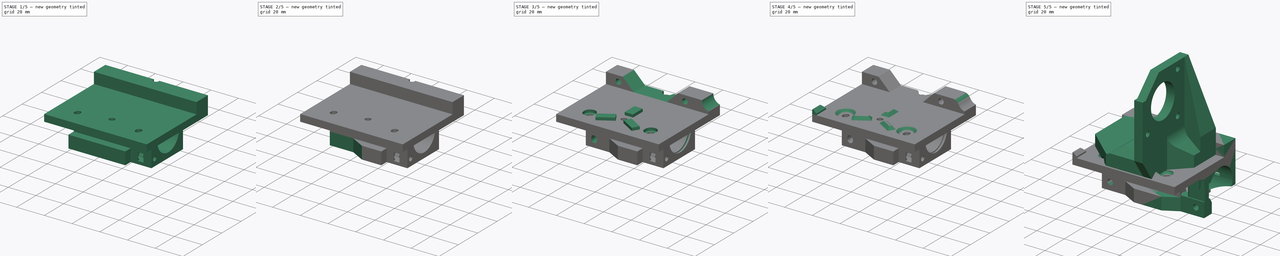
[diagram: build sequence overview — one tinted view per stage of 5, left to right]
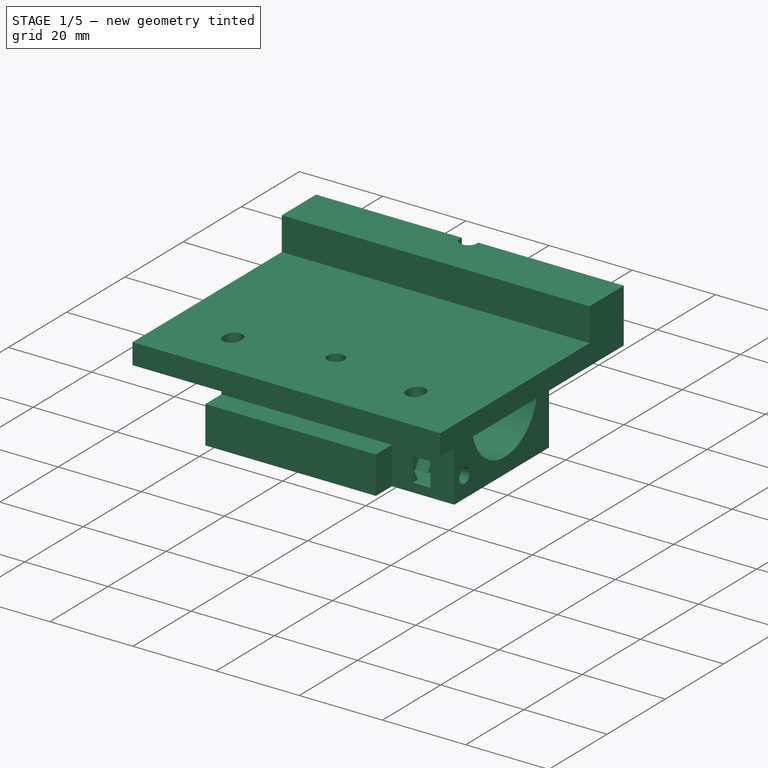
[diagram: stage 1 of 5 — iso view after this stage's code; geometry added in this stage tinted green]
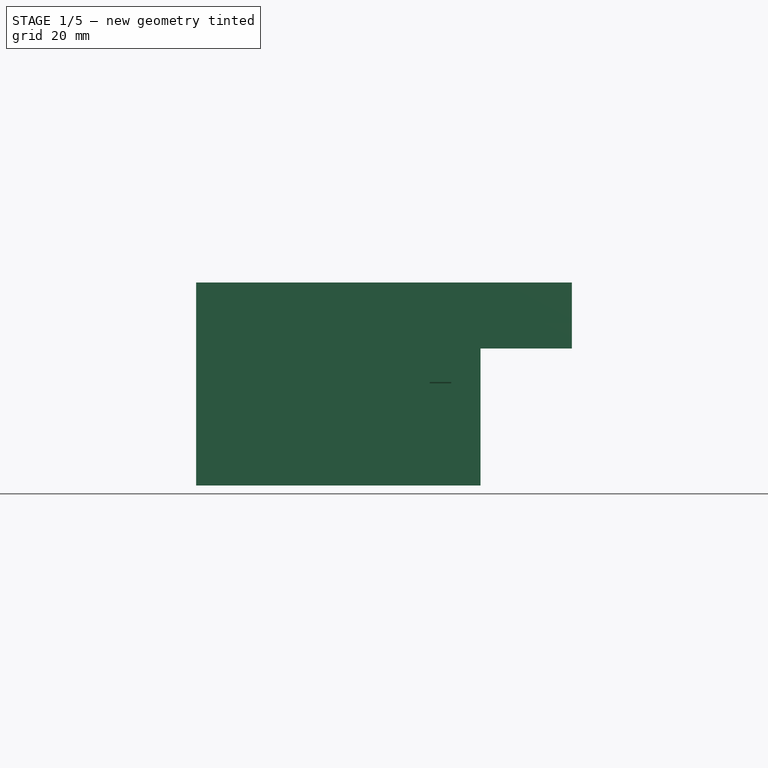
[diagram: stage 1 of 5 — front view after this stage's code; geometry added in this stage tinted green]
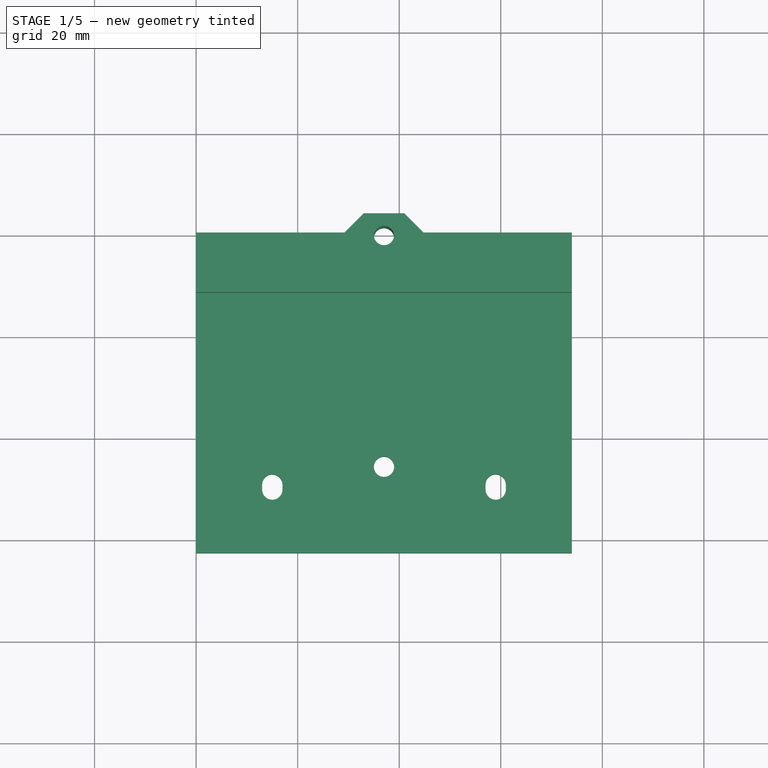
[diagram: stage 1 of 5 — top view after this stage's code; geometry added in this stage tinted green]
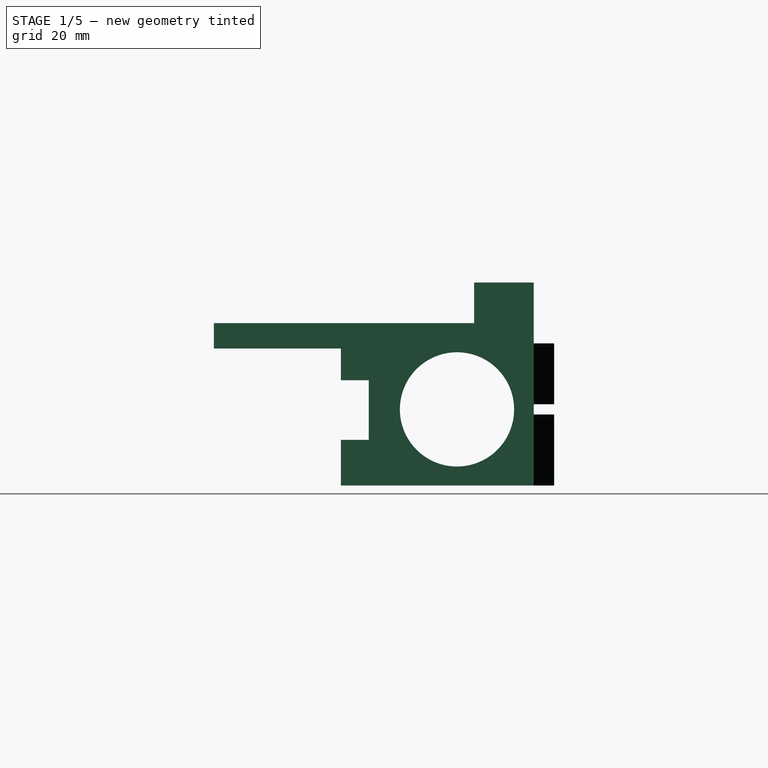
[diagram: stage 1 of 5 — right view after this stage's code; geometry added in this stage tinted green]
FCSTD DOCUMENT  (FreeCAD 0.17R13662 (Git))
Label: x_carriage_v0.3
License: CreativeCommons Attribution-ShareAlike
LicenseURL: http://creativecommons.org/licenses/by-sa/4.0/
objects: Sketcher::SketchObject×23, PartDesign::Pocket×19, App::FeaturePython×5, PartDesign::Chamfer×5, PartDesign::Pad×4, PartDesign::Fillet×4, Part::FeaturePython×3, PartDesign::Body×1
note: 82 computed .brp shape members not serialized (recipe doc carries the construction recipe); baked Part::Feature solids carry a one-line shape summary decoded from their .brp

FEATURE [Sketcher::SketchObject] Sketch
  MapMode = 5
  Placement = pos=(0,0,0) rot=(0.57735,0.57735,0.57735;2.0944rad)
  Support = -> [YZ_Plane]
  sketch-geometry (15):
    g0: LineSegment StartX=4 StartY=-40 StartZ=0 EndX=4 EndY=-12 EndZ=0
    g1: LineSegment StartX=4 StartY=-12 StartZ=0 EndX=0 EndY=-12 EndZ=0
    g2: LineSegment StartX=0 StartY=-12 StartZ=0 EndX=0 EndY=0 EndZ=0
    g3: LineSegment StartX=0 StartY=0 StartZ=0 EndX=-11.75 EndY=0 EndZ=0
    g4: LineSegment StartX=-11.75 StartY=0 StartZ=0 EndX=-11.75 EndY=-8 EndZ=0
    g5: LineSegment StartX=-11.75 StartY=-8 StartZ=0 EndX=-63 EndY=-8 EndZ=0
    g6: LineSegment StartX=-63 StartY=-8 StartZ=0 EndX=-63 EndY=-13 EndZ=0
    g7: LineSegment StartX=-63 StartY=-13 StartZ=0 EndX=-38 EndY=-13 EndZ=0
    g8: LineSegment StartX=-38 StartY=-13 StartZ=0 EndX=-38 EndY=-19.25 EndZ=0
    g9: LineSegment StartX=-38 StartY=-19.25 StartZ=0 EndX=-32.5 EndY=-19.25 EndZ=0
    g10: LineSegment StartX=-32.5 StartY=-19.25 StartZ=0 EndX=-32.5 EndY=-31 EndZ=0
    g11: LineSegment StartX=-32.5 StartY=-31 StartZ=0 EndX=-38 EndY=-31 EndZ=0
    g12: LineSegment StartX=-38 StartY=-31 StartZ=0 EndX=-38 EndY=-40 EndZ=0
    g13: LineSegment StartX=-38 StartY=-40 StartZ=0 EndX=4 EndY=-40 EndZ=0
    g14: Circle CenterX=-15.125 CenterY=-25 CenterZ=0 NormalX=0 NormalY=0 NormalZ=1 AngleXU=0 Radius=11.25
  constraints (44):
    c: Coincident(g0,g1)
    c: Coincident(g1,g2)
    c: Coincident(g2,g3)
    c: Coincident(g3,g4)
    c: Coincident(g4,g5)
    c: Coincident(g5,g6)
    c: Coincident(g6,g7)
    c: Coincident(g7,g8)
    c: Coincident(g8,g9)
    c: Coincident(g9,g10)
    c: Coincident(g10,g11)
    c: Coincident(g11,g12)
    c: Coincident(g12,g13)
    c: Coincident(g0,g13)
    c: Coincident(g2,g-1)
    c: Horizontal(g3)
    c: Horizontal(g5)
    c: Horizontal(g7)
    c: Horizontal(g9)
    c: Horizontal(g11)
    c: Horizontal(g13)
    c: Horizontal(g1)
    c: Vertical(g2)
    c: Vertical(g4)
    c: Vertical(g0)
    c: Vertical(g6)
    c: Vertical(g8)
    c: Vertical(g10)
    c: Vertical(g12)
    c: DistanceX(g3,g3) = 11.75
    c: DistanceY(g4,g4) = 8
    c: DistanceX(g5,g5) = 51.25
    c: DistanceY(g6,g6) = 5
    c: DistanceX(g7,g7) = 25
    c: DistanceY(g8,g8) = 6.25
    c: DistanceX(g9,g9) = 5.5
    c: DistanceY(g10,g10) = 11.75
    c: Equal(g11,g9)
    c: DistanceY(g12,g12) = 9
    c: DistanceX(g13,g13) = 42
    c: DistanceY(g0,g0) = 28
    c: DistanceX(g14) = -15.125
    c: DistanceY(g14) = -25
    c: Radius(g14) = 11.25
FEATURE [PartDesign::Pad] Pad
  Length = 74
  Length2 = 100
  Placement = pos=(0,0,0) rot=(0.57735,0.57735,0.57735;2.0944rad)
  Profile = -> Sketch
  Type = 0
FEATURE [Sketcher::SketchObject] Sketch001
  MapMode = 5
  Placement = pos=(5e-12,-5e-12,-40) rot=(0.707107,0.707107,0;3.14159rad)
  Support = -> [Pad]
  sketch-geometry (18):
    g0: Circle CenterX=-0.5 CenterY=37 CenterZ=0 NormalX=0 NormalY=0 NormalZ=1 AngleXU=0 Radius=2
    g1: ArcOfCircle CenterX=-50.5 CenterY=59 CenterZ=0 NormalX=0 NormalY=0 NormalZ=1 AngleXU=0 Radius=2 StartAngle=1.5708 EndAngle=4.71239
    g2: ArcOfCircle CenterX=-49.5 CenterY=59 CenterZ=0 NormalX=0 NormalY=0 NormalZ=1 AngleXU=0 Radius=2 StartAngle=4.71239 EndAngle=7.85398
    g3: LineSegment StartX=-50.5 StartY=57 StartZ=0 EndX=-49.5 EndY=57 EndZ=0
    g4: LineSegment StartX=-50.5 StartY=61 StartZ=0 EndX=-49.5 EndY=61 EndZ=0
    g5: ArcOfCircle CenterX=-50.5 CenterY=15 CenterZ=0 NormalX=0 NormalY=0 NormalZ=1 AngleXU=0 Radius=2 StartAngle=1.5708 EndAngle=4.71239
    g6: ArcOfCircle CenterX=-49.5 CenterY=15 CenterZ=0 NormalX=0 NormalY=0 NormalZ=1 AngleXU=0 Radius=2 StartAngle=4.71239 EndAngle=7.85398
    g7: LineSegment StartX=-50.5 StartY=13 StartZ=0 EndX=-49.5 EndY=13 EndZ=0
    g8: LineSegment StartX=-50.5 StartY=17 StartZ=0 EndX=-49.5 EndY=17 EndZ=0
    g9: Circle CenterX=-46 CenterY=37 CenterZ=0 NormalX=0 NormalY=0 NormalZ=1 AngleXU=0 Radius=2
    g10: LineSegment StartX=0 StartY=74 StartZ=0 EndX=4 EndY=74 EndZ=0
    g11: LineSegment StartX=4 StartY=74 StartZ=0 EndX=4 EndY=41 EndZ=0
    g12: LineSegment StartX=4 StartY=41 StartZ=0 EndX=0 EndY=45 EndZ=0
    g13: LineSegment StartX=0 StartY=45 StartZ=0 EndX=0 EndY=74 EndZ=0
    g14: LineSegment StartX=4 StartY=33 StartZ=0 EndX=0 EndY=29 EndZ=0
    g15: LineSegment StartX=0 StartY=29 StartZ=0 EndX=0 EndY=0 EndZ=0
    g16: LineSegment StartX=0 StartY=0 StartZ=0 EndX=4 EndY=0 EndZ=0
    g17: LineSegment StartX=4 StartY=0 StartZ=0 EndX=4 EndY=33 EndZ=0
  constraints (49):
    c: DistanceX(g0) = -0.5
    c: DistanceY(g0) = 37
    c: Radius(g0) = 2
    c: Tangent(g1,g4) = 1.5708
    c: Tangent(g1,g3) = -1.5708
    c: Tangent(g3,g2) = -1.5708
    c: Tangent(g4,g2) = 1.5708
    c: Horizontal(g3)
    c: Equal(g1,g2)
    c: Tangent(g5,g8) = 1.5708
    c: Tangent(g5,g7) = -1.5708
    c: Tangent(g7,g6) = -1.5708
    c: Tangent(g8,g6) = 1.5708
    c: Horizontal(g7)
    c: Equal(g5,g6)
    c: DistanceX(g9) = -46
    c: DistanceY(g9) = 37
    c: DistanceX(g2) = -49.5
    c: DistanceY(g2) = 59
    c: DistanceX(g4,g4) = 1
    c: Radius(g2) = 2
    c: DistanceX(g5) = -50.5
    c: DistanceY(g5) = 15
    c: DistanceX(g8,g8) = 1
    c: Radius(g6) = 2
    c: Coincident(g10,g11)
    c: Coincident(g11,g12)
    c: Coincident(g12,g13)
    c: Coincident(g13,g10)
    c: Horizontal(g10)
    c: Vertical(g11)
    c: Vertical(g13)
    c: Coincident(g14,g15)
    c: Coincident(g15,g16)
    c: Coincident(g16,g17)
    c: Coincident(g17,g14)
    c: Horizontal(g16)
    c: Vertical(g15)
    c: Vertical(g17)
    c: Coincident(g15,g-1)
    c: DistanceX(g12,g12) = 4
    c: Angle(g14) = -2.35619
    c: DistanceY(g17,g17) = 33
    c: Angle(g12) = 2.35619
    c: PointOnObject(g10,g-2)
    c: DistanceX(g14,g14) = 4
    c: Equal(g9,g0)
    c: DistanceY(g14,g11) = 8
    c: DistanceY(g11,g11) = 33
FEATURE [PartDesign::Pocket] Pocket
  BaseFeature = -> Pad
  Length = 5
  Length2 = 100
  Placement = pos=(0,0,0) rot=(0.57735,0.57735,0.57735;2.0944rad)
  Profile = -> Sketch001
  Type = 1
FEATURE [Sketcher::SketchObject] Sketch002
  MapMode = 5
  Placement = pos=(5e-12,-5e-12,-40) rot=(0.707107,0.707107,0;3.14159rad)
  Support = -> [Pocket]
  sketch-geometry (6):
    g0: LineSegment StartX=0 StartY=56 StartZ=0 EndX=0 EndY=74 EndZ=0
    g1: LineSegment StartX=0 StartY=74 StartZ=0 EndX=-38 EndY=74 EndZ=0
    g2: LineSegment StartX=-38 StartY=74 StartZ=0 EndX=-38 EndY=41 EndZ=0
    g3: LineSegment StartX=-38 StartY=41 StartZ=0 EndX=-32.5 EndY=41 EndZ=0
    g4: LineSegment StartX=-32.5 StartY=41 StartZ=0 EndX=-32.5 EndY=56 EndZ=0
    g5: LineSegment StartX=-32.5 StartY=56 StartZ=0 EndX=0 EndY=56 EndZ=0
  constraints (18):
    c: Coincident(g0,g1)
    c: Coincident(g1,g2)
    c: Coincident(g2,g3)
    c: Coincident(g3,g4)
    c: Coincident(g4,g5)
    c: Coincident(g0,g5)
    c: PointOnObject(g0,g-2)
    c: Vertical(g0)
    c: Vertical(g2)
    c: Vertical(g4)
    c: Horizontal(g3)
    c: Horizontal(g1)
    c: Horizontal(g5)
    c: DistanceY(g0) = 56
    c: DistanceX(g5,g5) = 32.5
    c: DistanceY(g4,g4) = 15
    c: DistanceX(g3,g3) = 5.5
    c: DistanceY(g0,g0) = 18
FEATURE [PartDesign::Pocket] Pocket001
  BaseFeature = -> Pocket
  Length = 27
  Length2 = 100
  Placement = pos=(0,0,0) rot=(0.57735,0.57735,0.57735;2.0944rad)
  Profile = -> Sketch002
  Type = 0
FEATURE [Sketcher::SketchObject] Sketch003
  MapMode = 5
  Placement = pos=(0,4,0) rot=(0.57735,0.57735,0.57735;4.18879rad)
  Support = -> [Pocket001]
  sketch-geometry (4):
    g0: LineSegment StartX=-26 StartY=56 StartZ=0 EndX=-24 EndY=56 EndZ=0
    g1: LineSegment StartX=-24 StartY=56 StartZ=0 EndX=-24 EndY=3 EndZ=0
    g2: LineSegment StartX=-24 StartY=3 StartZ=0 EndX=-26 EndY=3 EndZ=0
    g3: LineSegment StartX=-26 StartY=3 StartZ=0 EndX=-26 EndY=56 EndZ=0
  constraints (12):
    c: Coincident(g0,g1)
    c: Coincident(g1,g2)
    c: Coincident(g2,g3)
    c: Coincident(g3,g0)
    c: Horizontal(g0)
    c: Horizontal(g2)
    c: Vertical(g1)
    c: Vertical(g3)
    c: DistanceX(g1) = -24
    c: DistanceY(g1) = 3
    c: DistanceX(g2,g2) = 2
    c: DistanceY(g1,g1) = 53
FEATURE [PartDesign::Pocket] Pocket002
  BaseFeature = -> Pocket001
  Length = 9
  Length2 = 100
  Placement = pos=(0,0,0) rot=(0.57735,0.57735,0.57735;2.0944rad)
  Profile = -> Sketch003
  Type = 0
FEATURE [Sketcher::SketchObject] Sketch004
  MapMode = 5
  Placement = pos=(-4e-12,-32.5,4e-12) rot=(0.57735,0.57735,-0.57735;2.0944rad)
  Support = -> [Pocket002]
  sketch-geometry (12):
    g0: LineSegment StartX=14.125 StartY=50.25 StartZ=0 EndX=19.875 EndY=50.25 EndZ=0
    g1: LineSegment StartX=19.875 StartY=50.25 StartZ=0 EndX=19.875 EndY=46 EndZ=0
    g2: LineSegment StartX=19.875 StartY=46 StartZ=0 EndX=14.125 EndY=46 EndZ=0
    g3: LineSegment StartX=14.125 StartY=46 StartZ=0 EndX=14.125 EndY=50.25 EndZ=0
    g4: LineSegment StartX=32.125 StartY=50.25 StartZ=0 EndX=37.875 EndY=50.25 EndZ=0
    g5: LineSegment StartX=37.875 StartY=50.25 StartZ=0 EndX=37.875 EndY=46 EndZ=0
    g6: LineSegment StartX=37.875 StartY=46 StartZ=0 EndX=32.125 EndY=46 EndZ=0
    g7: LineSegment StartX=32.125 StartY=46 StartZ=0 EndX=32.125 EndY=50.25 EndZ=0
    g8: LineSegment [constr] StartX=19.875 StartY=50.25 StartZ=0 EndX=32.125 EndY=50.25 EndZ=0
    g9: LineSegment [constr] StartX=32.125 StartY=50.25 StartZ=0 EndX=32.125 EndY=46 EndZ=0
    g10: LineSegment [constr] StartX=32.125 StartY=46 StartZ=0 EndX=19.875 EndY=46 EndZ=0
    g11: LineSegment [constr] StartX=19.875 StartY=46 StartZ=0 EndX=19.875 EndY=50.25 EndZ=0
  constraints (34):
    c: Coincident(g0,g1)
    c: Coincident(g1,g2)
    c: Coincident(g2,g3)
    c: Coincident(g3,g0)
    c: Horizontal(g0)
    c: Horizontal(g2)
    c: Vertical(g1)
    c: Vertical(g3)
    c: Coincident(g4,g5)
    c: Coincident(g5,g6)
    c: Coincident(g6,g7)
    c: Coincident(g7,g4)
    c: Horizontal(g4)
    c: Horizontal(g6)
    c: Vertical(g5)
    c: Vertical(g7)
    c: DistanceX(g5) = 37.875
    c: DistanceY(g5) = 46
    c: DistanceX(g4,g4) = 5.75
    c: DistanceY(g5,g5) = 4.25
    c: Coincident(g8,g9)
    c: Coincident(g9,g10)
    c: Coincident(g10,g11)
    c: Coincident(g11,g8)
    c: Horizontal(g8)
    c: Horizontal(g10)
    c: Vertical(g9)
    c: Vertical(g11)
    c: Coincident(g6,g9)
    c: Coincident(g0,g8)
    c: DistanceX(g10,g10) = 12.25
    c: Coincident(g1,g10)
    c: Coincident(g4,g8)
    c: Equal(g2,g6)
FEATURE [PartDesign::Pocket] Pocket003
  BaseFeature = -> Pocket002
  Length = 7.5
  Length2 = 100
  Placement = pos=(0,0,0) rot=(0.57735,0.57735,0.57735;2.0944rad)
  Profile = -> Sketch004
  Type = 0
FEATURE [Sketcher::SketchObject] Sketch005
  MapMode = 5
  Placement = pos=(56,-6e-12,6e-12) rot=(0.57735,0.57735,0.57735;2.0944rad)
  Support = -> [Pocket003]
  sketch-geometry (2):
    g0: Circle CenterX=-29 CenterY=-17 CenterZ=0 NormalX=0 NormalY=0 NormalZ=1 AngleXU=0 Radius=1.75
    g1: Circle CenterX=-29 CenterY=-35 CenterZ=0 NormalX=0 NormalY=0 NormalZ=1 AngleXU=0 Radius=1.75
  constraints (6):
    c: DistanceX(g0) = -29
    c: DistanceY(g0) = -17
    c: DistanceX(g1,g0) = 0
    c: DistanceY(g1,g0) = 18
    c: Radius(g1) = 1.75
    c: Equal(g1,g0)
FEATURE [PartDesign::Pocket] Pocket004
  BaseFeature = -> Pocket003
  Length = 22
  Length2 = 100
  Placement = pos=(0,0,0) rot=(0.57735,0.57735,0.57735;2.0944rad)
  Profile = -> Sketch005
  Type = 0
FEATURE [App::FeaturePython] circularEdgeConstraint02  label="circularEdgeConstraint02__Pad002"  # a2plus constraint (typed FeaturePython)
  Object1 = Beefy_extruder_mount_v2_2_01
  Object2 = Pad002
  SubElement1 = Edge187
  SubElement2 = Edge268
  Type = circularEdge
  directionConstraint = 0
  lockRotation = false
  offset = 0
FEATURE [App::FeaturePython] circularEdgeConstraint02_mirror001  label="circularEdgeConstraint02__Beefy_extruder_mount_v2_2_01"  # a2plus constraint (typed FeaturePython)
  Object1 = Beefy_extruder_mount_v2_2_01
  Object2 = Pad002
  SubElement1 = Edge187
  SubElement2 = Edge268
  Type = circularEdge
  directionConstraint = 0
  lockRotation = false
  offset = 0
FEATURE [PartDesign::Pocket] Pocket005
  BaseFeature = -> Pocket004
  Length = 3
  Length2 = 100
  Placement = pos=(0,0,0) rot=(0.57735,0.57735,0.57735;2.0944rad)
  Profile = -> Sketch006
  Type = 0
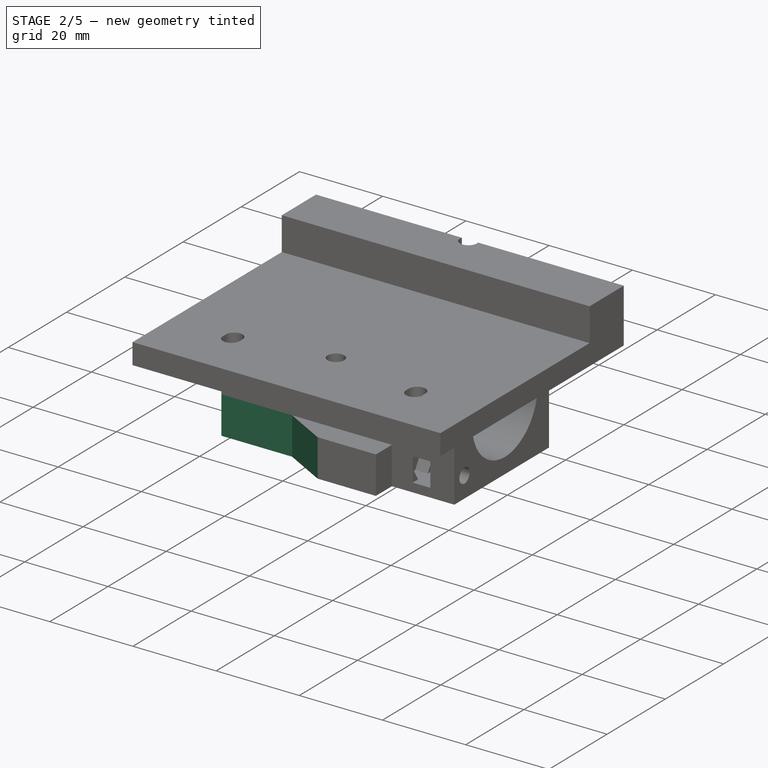
[diagram: stage 2 of 5 — iso view after this stage's code; geometry added in this stage tinted green]
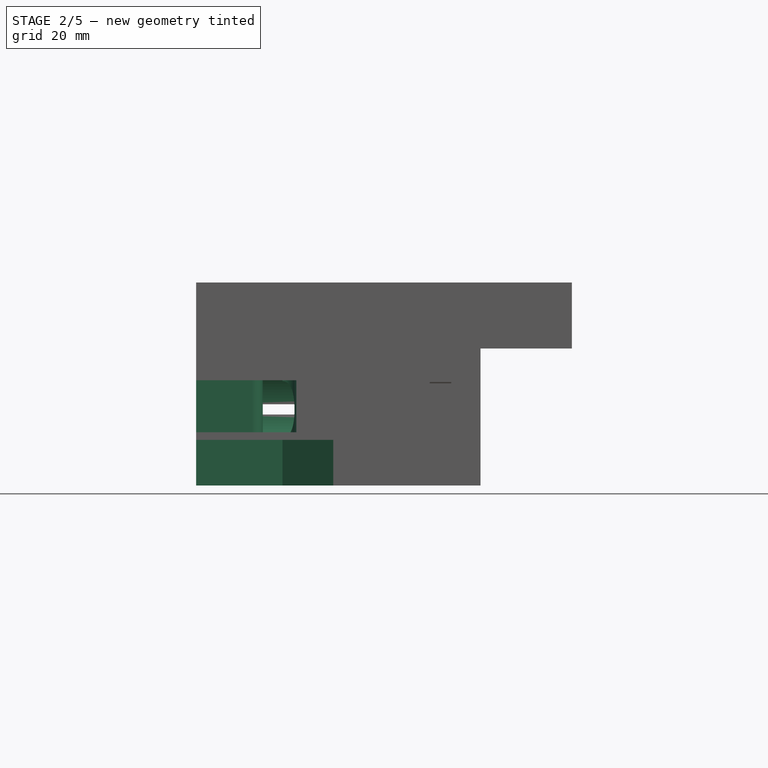
[diagram: stage 2 of 5 — front view after this stage's code; geometry added in this stage tinted green]
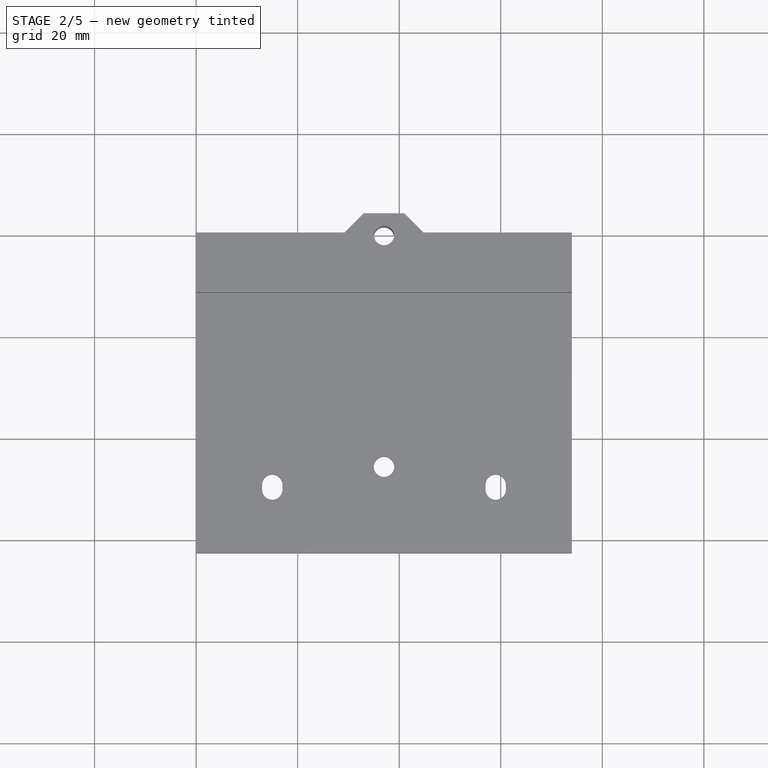
[diagram: stage 2 of 5 — top view after this stage's code; geometry added in this stage tinted green]
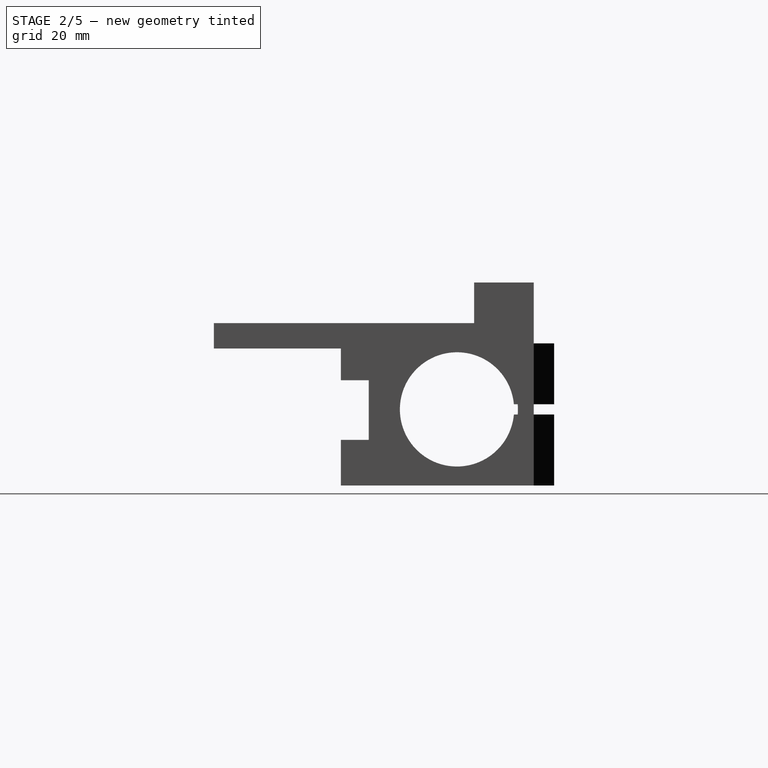
[diagram: stage 2 of 5 — right view after this stage's code; geometry added in this stage tinted green]
FEATURE [Sketcher::SketchObject] Sketch007
  MapMode = 5
  Placement = pos=(50.25,-6e-12,6e-12) rot=(0.57735,0.57735,-0.57735;4.18879rad)
  Support = -> [Pocket005]
  sketch-geometry (14):
    g0: LineSegment StartX=-32.35 StartY=35 StartZ=0 EndX=-30.675 EndY=32.0988 EndZ=0
    g1: LineSegment StartX=-30.675 StartY=32.0988 StartZ=0 EndX=-27.325 EndY=32.0988 EndZ=0
    g2: LineSegment StartX=-27.325 StartY=32.0988 StartZ=0 EndX=-25.65 EndY=35 EndZ=0
    g3: LineSegment StartX=-25.65 StartY=35 StartZ=0 EndX=-27.325 EndY=37.9012 EndZ=0
    g4: LineSegment StartX=-27.325 StartY=37.9012 StartZ=0 EndX=-30.675 EndY=37.9012 EndZ=0
    g5: LineSegment StartX=-30.675 StartY=37.9012 StartZ=0 EndX=-32.35 EndY=35 EndZ=0
    g6: Circle [constr] CenterX=-29 CenterY=35 CenterZ=0 NormalX=0 NormalY=0 NormalZ=1 AngleXU=0 Radius=3.35
    g7: LineSegment StartX=-32.35 StartY=17 StartZ=0 EndX=-30.675 EndY=14.0988 EndZ=0
    g8: LineSegment StartX=-30.675 StartY=14.0988 StartZ=0 EndX=-27.325 EndY=14.0988 EndZ=0
    g9: LineSegment StartX=-27.325 StartY=14.0988 StartZ=0 EndX=-25.65 EndY=17 EndZ=0
    g10: LineSegment StartX=-25.65 StartY=17 StartZ=0 EndX=-27.325 EndY=19.9012 EndZ=0
    g11: LineSegment StartX=-27.325 StartY=19.9012 StartZ=0 EndX=-30.675 EndY=19.9012 EndZ=0
    g12: LineSegment StartX=-30.675 StartY=19.9012 StartZ=0 EndX=-32.35 EndY=17 EndZ=0
    g13: Circle [constr] CenterX=-29 CenterY=17 CenterZ=0 NormalX=0 NormalY=0 NormalZ=1 AngleXU=0 Radius=3.35
  constraints (34):
    c: Coincident(g0,g1)
    c: Coincident(g1,g2)
    c: Coincident(g2,g3)
    c: Coincident(g3,g4)
    c: Coincident(g4,g5)
    c: Coincident(g5,g0)
    c: Equal(g0, g1-g5) x5
    c: PointOnObject(g0,g6)
    c: PointOnObject(g1,g6)
    c: PointOnObject(g2,g6)
    c: PointOnObject(g3,g6)
    c: PointOnObject(g4,g6)
    c: PointOnObject(g5,g6)
    c: Coincident(g7,g8)
    c: Coincident(g8,g9)
    c: Coincident(g9,g10)
    c: Coincident(g10,g11)
    c: Coincident(g11,g12)
    c: Coincident(g12,g7)
    c: Equal(g7, g8-g12) x5
    c: PointOnObject(g7,g13)
    c: PointOnObject(g8,g13)
    c: PointOnObject(g9,g13)
    c: PointOnObject(g10,g13)
    c: PointOnObject(g11,g13)
    c: PointOnObject(g12,g13)
    c: DistanceX(g13) = -29
    c: DistanceY(g13) = 17
    c: Horizontal(g11)
    c: Radius(g13) = 3.35
    c: DistanceX(g6,g13) = 0
    c: DistanceY(g6,g13) = -18
    c: Equal(g6,g13)
    c: Horizontal(g1)
FEATURE [PartDesign::Pocket] Pocket006
  BaseFeature = -> Pocket005
  Length = 3
  Length2 = 100
  Placement = pos=(0,0,0) rot=(0.57735,0.57735,0.57735;2.0944rad)
  Profile = -> Sketch007
  Type = 0
FEATURE [Sketcher::SketchObject] Sketch008
  MapMode = 5
  Placement = pos=(5e-12,-5e-12,-40) rot=(0.707107,0.707107,0;3.14159rad)
  Support = -> [Pocket006]
  sketch-geometry (7):
    g0: LineSegment StartX=-3.40119 StartY=35.325 StartZ=0 EndX=-0.5 EndY=33.65 EndZ=0
    g1: LineSegment StartX=-0.5 StartY=33.65 StartZ=0 EndX=2.40119 EndY=35.325 EndZ=0
    g2: LineSegment StartX=2.40119 StartY=35.325 StartZ=0 EndX=2.40119 EndY=38.675 EndZ=0
    g3: LineSegment StartX=2.40119 StartY=38.675 StartZ=0 EndX=-0.5 EndY=40.35 EndZ=0
    g4: LineSegment StartX=-0.5 StartY=40.35 StartZ=0 EndX=-3.40119 EndY=38.675 EndZ=0
    g5: LineSegment StartX=-3.40119 StartY=38.675 StartZ=0 EndX=-3.40119 EndY=35.325 EndZ=0
    g6: Circle [constr] CenterX=-0.5 CenterY=37 CenterZ=0 NormalX=0 NormalY=0 NormalZ=1 AngleXU=0 Radius=3.35
  constraints (17):
    c: Coincident(g0,g1)
    c: Coincident(g1,g2)
    c: Coincident(g2,g3)
    c: Coincident(g3,g4)
    c: Coincident(g4,g5)
    c: Coincident(g5,g0)
    c: Equal(g0, g1-g5) x5
    c: PointOnObject(g0,g6)
    c: PointOnObject(g1,g6)
    c: PointOnObject(g2,g6)
    c: PointOnObject(g3,g6)
    c: PointOnObject(g4,g6)
    c: PointOnObject(g5,g6)
    c: DistanceX(g6) = -0.5
    c: DistanceY(g6) = 37
    c: Vertical(g5)
    c: Radius(g6) = 3.35
FEATURE [PartDesign::Pocket] Pocket007
  BaseFeature = -> Pocket006
  Length = 8
  Length2 = 100
  Placement = pos=(0,0,0) rot=(0.57735,0.57735,0.57735;2.0944rad)
  Profile = -> Sketch008
  Type = 0
FEATURE [PartDesign::Pocket] Pocket008
  BaseFeature = -> Pocket007
  Length = 17
  Length2 = 100
  Placement = pos=(0,0,0) rot=(0.57735,0.57735,0.57735;2.0944rad)
  Profile = -> Sketch009
  Type = 0
FEATURE [Sketcher::SketchObject] Sketch010
  ExternalGeometry = -> [Pocket008]
  MapMode = 5
  Placement = pos=(2e-12,-2e-12,-19.25) rot=(0.707107,0.707107,0;3.14159rad)
  Support = -> [Pocket008]
  sketch-geometry (10):
    g0: ArcOfCircle CenterX=-28.5 CenterY=17 CenterZ=0 NormalX=0 NormalY=0 NormalZ=1 AngleXU=0 Radius=2.75 StartAngle=0 EndAngle=1.5708
    g1: LineSegment StartX=-25.75 StartY=17 StartZ=0 EndX=-27.5 EndY=17 EndZ=0
    g2: LineSegment StartX=-27.5 StartY=17 StartZ=0 EndX=-27.5 EndY=11 EndZ=0
    g3: LineSegment [constr] StartX=-27.5 StartY=11 StartZ=0 EndX=-31.75 EndY=11 EndZ=0
    g4: ArcOfCircle CenterX=-29.625 CenterY=11 CenterZ=0 NormalX=0 NormalY=0 NormalZ=1 AngleXU=0 Radius=2.125 StartAngle=0 EndAngle=3.14159
    g5: LineSegment StartX=-32.5 StartY=19.75 StartZ=0 EndX=-28.5 EndY=19.75 EndZ=0
    g6: LineSegment [constr] StartX=-28.5 StartY=19.75 StartZ=0 EndX=-28.5 EndY=17 EndZ=0
    g7: LineSegment [constr] StartX=-28.5 StartY=17 StartZ=0 EndX=-31.75 EndY=17 EndZ=0
    g8: LineSegment StartX=-32.5 StartY=19.75 StartZ=0 EndX=-32.5 EndY=11 EndZ=0
    g9: LineSegment StartX=-32.5 StartY=11 StartZ=0 EndX=-31.75 EndY=11 EndZ=0
  constraints (29):
    c: DistanceY(g0,g0) = 0
    c: Coincident(g1,g2)
    c: Coincident(g2,g3)
    c: Horizontal(g3)
    c: Horizontal(g1)
    c: Vertical(g2)
    c: Coincident(g2,g4)
    c: Coincident(g3,g4)
    c: PointOnObject(g4,g3)
    c: DistanceY(g3,g-4) = 6
    c: DistanceX(g3,g3) = 4.25
    c: Coincident(g0,g1)
    c: DistanceX(g1,g1) = 1.75
    c: DistanceY(g2,g2) = 6
    c: Coincident(g5,g6)
    c: Coincident(g6,g7)
    c: Horizontal(g5)
    c: Horizontal(g7)
    c: Vertical(g6)
    c: Tangent(g0,g5) = 1.5708
    c: DistanceY(g6,g6) = 2.75
    c: Coincident(g8,g9)
    c: Coincident(g3,g9)
    c: Coincident(g5,g8)
    c: Vertical(g8)
    c: Horizontal(g9)
    c: Coincident(g7,g-4)
    c: DistanceX(g9,g9) = 0.75
    c: PointOnObject(g3,g-4)
FEATURE [PartDesign::Pocket] Pocket009
  BaseFeature = -> Pocket008
  Length = 10.25
  Length2 = 100
  Placement = pos=(0,0,0) rot=(0.57735,0.57735,0.57735;2.0944rad)
  Profile = -> Sketch010
  Reversed = true
  Type = 0
FEATURE [Sketcher::SketchObject] Sketch011
  MapMode = 5
  Placement = pos=(0,0,0) rot=(0.57735,0.57735,0.57735;4.18879rad)
  Support = -> [Pocket009]
  sketch-geometry (3):
    g0: ArcOfCircle CenterX=-71.5335 CenterY=-6.24233 CenterZ=0 NormalX=0 NormalY=0 NormalZ=1 AngleXU=0 Radius=42 StartAngle=0.14918 EndAngle=0.721527
    g1: LineSegment StartX=-40 StartY=21.5 StartZ=0 EndX=-40 EndY=-3.1e-11 EndZ=0
    g2: LineSegment StartX=-40 StartY=-3.1e-11 StartZ=0 EndX=-30 EndY=-3.1e-11 EndZ=0
  constraints (10):
    c: PointOnObject(g0,g-1)
    c: DistanceX(g0) = -30
    c: Coincident(g1,g2)
    c: Coincident(g0,g2)
    c: Horizontal(g2)
    c: Vertical(g1)
    c: DistanceX(g2,g2) = 10
    c: Coincident(g0,g1)
    c: DistanceY(g1,g1) = 21.5
    c: Radius(g0) = 42
FEATURE [PartDesign::Pocket] Pocket010
  BaseFeature = -> Pocket009
  Length = 24.5
  Length2 = 100
  Placement = pos=(0,0,0) rot=(0.57735,0.57735,0.57735;2.0944rad)
  Profile = -> Sketch011
  Type = 0
FEATURE [PartDesign::Pocket] Pocket011
  BaseFeature = -> Pocket010
  Length = 20
  Length2 = 100
  Placement = pos=(0,0,0) rot=(0.57735,0.57735,0.57735;2.0944rad)
  Profile = -> Sketch012
  Type = 0
FEATURE [Sketcher::SketchObject] Sketch013
  MapMode = 5
  Placement = pos=(5e-12,-5e-12,-40) rot=(0.707107,0.707107,0;3.14159rad)
  Support = -> [Pocket011]
  sketch-geometry (4):
    g0: LineSegment StartX=-38 StartY=27 StartZ=0 EndX=-32.5 EndY=17 EndZ=0
    g1: LineSegment StartX=-32.5 StartY=17 StartZ=0 EndX=-32.5 EndY=0 EndZ=0
    g2: LineSegment StartX=-32.5 StartY=0 StartZ=0 EndX=-38 EndY=0 EndZ=0
    g3: LineSegment StartX=-38 StartY=0 StartZ=0 EndX=-38 EndY=27 EndZ=0
  constraints (12):
    c: Coincident(g0,g1)
    c: Coincident(g1,g2)
    c: Coincident(g2,g3)
    c: Coincident(g0,g3)
    c: PointOnObject(g2,g-1)
    c: Horizontal(g2)
    c: DistanceX(g1) = -32.5
    c: DistanceX(g2,g2) = 5.5
    c: Vertical(g1)
    c: Vertical(g3)
    c: DistanceY(g1,g1) = 17
    c: DistanceY(g0,g0) = 10
FEATURE [PartDesign::Pocket] Pocket012
  BaseFeature = -> Pocket011
  Length = 9
  Length2 = 100
  Placement = pos=(0,0,0) rot=(0.57735,0.57735,0.57735;2.0944rad)
  Profile = -> Sketch013
  Type = 0
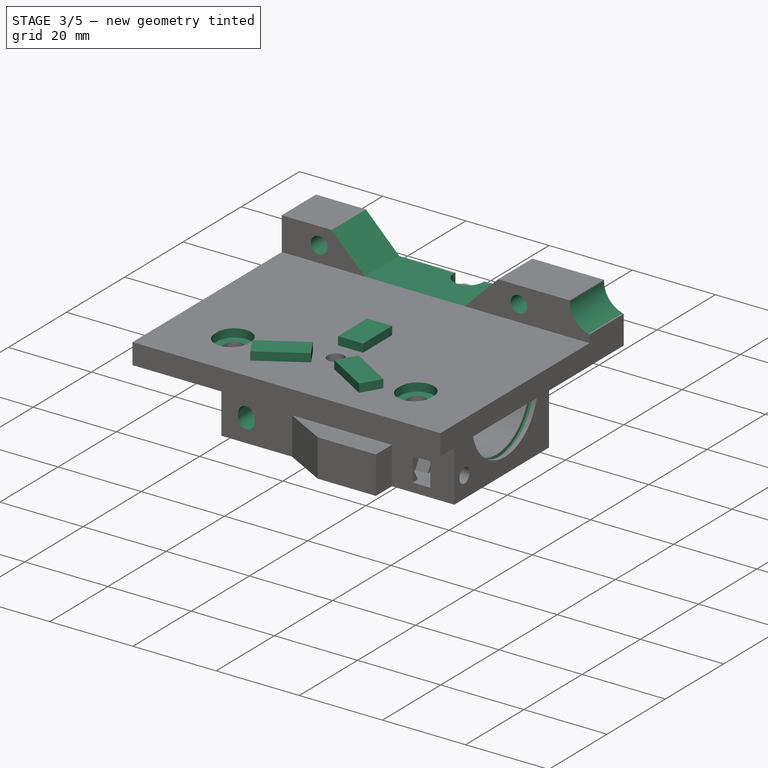
[diagram: stage 3 of 5 — iso view after this stage's code; geometry added in this stage tinted green]
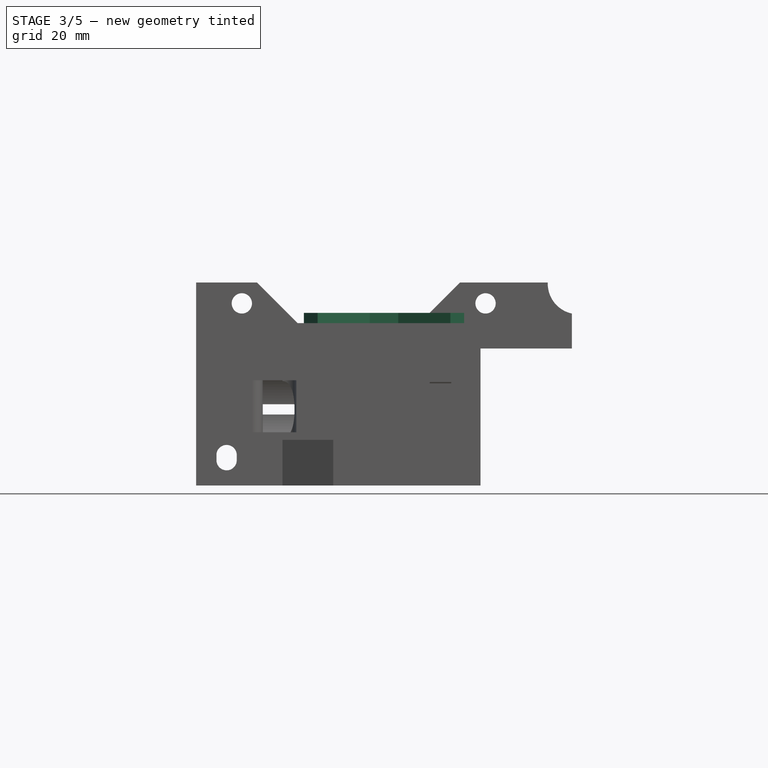
[diagram: stage 3 of 5 — front view after this stage's code; geometry added in this stage tinted green]
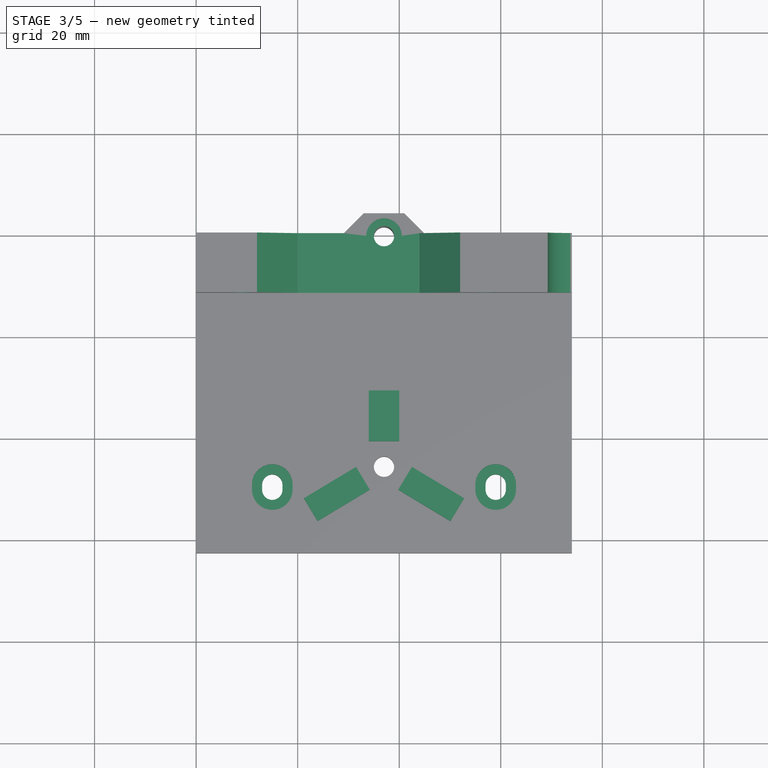
[diagram: stage 3 of 5 — top view after this stage's code; geometry added in this stage tinted green]
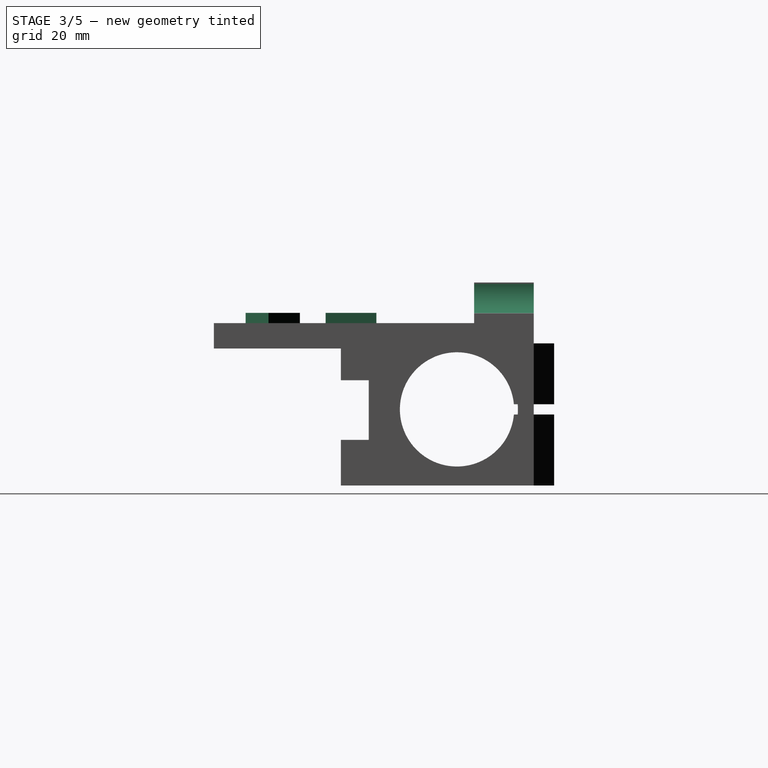
[diagram: stage 3 of 5 — right view after this stage's code; geometry added in this stage tinted green]
FEATURE [Sketcher::SketchObject] Sketch014
  MapMode = 5
  Placement = pos=(0,0,0) rot=(0.57735,0.57735,0.57735;4.18879rad)
  Support = -> [Pocket012]
  sketch-geometry (9):
    g0: LineSegment StartX=0 StartY=52 StartZ=0 EndX=-8 EndY=44 EndZ=0
    g1: LineSegment StartX=-8 StartY=44 StartZ=0 EndX=-8 EndY=20 EndZ=0
    g2: LineSegment StartX=-8 StartY=20 StartZ=0 EndX=0 EndY=12 EndZ=0
    g3: LineSegment StartX=0 StartY=12 StartZ=0 EndX=0 EndY=52 EndZ=0
    g4: Circle CenterX=-4.125 CenterY=57 CenterZ=0 NormalX=0 NormalY=0 NormalZ=1 AngleXU=0 Radius=2
    g5: Circle CenterX=-4.125 CenterY=9 CenterZ=0 NormalX=0 NormalY=0 NormalZ=1 AngleXU=0 Radius=2
    g6: Circle CenterX=-0.25 CenterY=75.25 CenterZ=0 NormalX=0 NormalY=0 NormalZ=1 AngleXU=0 Radius=6
    g7: LineSegment [constr] StartX=-4.125 StartY=57 StartZ=0 EndX=-4.125 EndY=9 EndZ=0
    g8: Circle CenterX=-15.75 CenterY=19.5 CenterZ=0 NormalX=0 NormalY=0 NormalZ=1 AngleXU=0 Radius=2.35
  constraints (26):
    c: Coincident(g0,g1)
    c: Coincident(g1,g2)
    c: Coincident(g2,g3)
    c: DistanceX(g6) = -0.25
    c: Radius(g6) = 6
    c: DistanceX(g5) = -4.125
    c: DistanceY(g5) = 9
    c: Coincident(g5,g7)
    c: Coincident(g4,g7)
    c: Vertical(g7)
    c: Coincident(g0,g3)
    c: Vertical(g3)
    c: PointOnObject(g2,g-2)
    c: Radius(g5) = 2
    c: Equal(g4,g5)
    c: DistanceY(g7,g7) = 48
    c: DistanceY(g2) = 12
    c: DistanceY(g3,g3) = 40
    c: Angle(g0) = -2.35619
    c: Vertical(g1)
    c: DistanceX(g0,g0) = 8
    c: Angle(g2) = -0.785398
    c: DistanceX(g8) = -15.75
    c: Radius(g8) = 2.35
    c: DistanceY(g6) = 75.25
    c: DistanceY(g8) = 19.5
FEATURE [PartDesign::Pocket] Pocket013
  BaseFeature = -> Pocket012
  Length = 11.75
  Length2 = 100
  Placement = pos=(0,0,0) rot=(0.57735,0.57735,0.57735;2.0944rad)
  Profile = -> Sketch014
  Type = 0
FEATURE [PartDesign::Pocket] Pocket014
  BaseFeature = -> Pocket013
  Length = 5
  Length2 = 100
  Placement = pos=(0,0,0) rot=(0.57735,0.57735,0.57735;2.0944rad)
  Profile = -> Sketch016
  Type = 1
FEATURE [PartDesign::Pocket] Pocket015
  BaseFeature = -> Pocket014
  Length = 2
  Length2 = 100
  Placement = pos=(0,0,0) rot=(0.57735,0.57735,0.57735;2.0944rad)
  Profile = -> Sketch017
  Type = 0
FEATURE [PartDesign::Pad] Pad001
  BaseFeature = -> Pocket015
  Length = 1
  Length2 = 100
  Placement = pos=(0,0,0) rot=(0.57735,0.57735,0.57735;2.0944rad)
  Profile = -> Sketch018
  Reversed = true
  Type = 0
FEATURE [PartDesign::Pad] Pad002
  BaseFeature = -> Pad001
  Length = 2
  Length2 = 100
  Placement = pos=(0,0,0) rot=(0.57735,0.57735,0.57735;2.0944rad)
  Profile = -> Sketch019
  Type = 0
FEATURE [PartDesign::Pocket] Pocket016
  BaseFeature = -> Pad002
  Length = 2
  Length2 = 100
  Placement = pos=(0,0,0) rot=(0.57735,0.57735,0.57735;2.0944rad)
  Profile = -> Sketch020
  Type = 0
FEATURE [PartDesign::Pocket] Pocket017
  BaseFeature = -> Pocket016
  Length = 5
  Length2 = 100
  Placement = pos=(0,0,0) rot=(0.57735,0.57735,0.57735;2.0944rad)
  Profile = -> Sketch021
  Type = 0
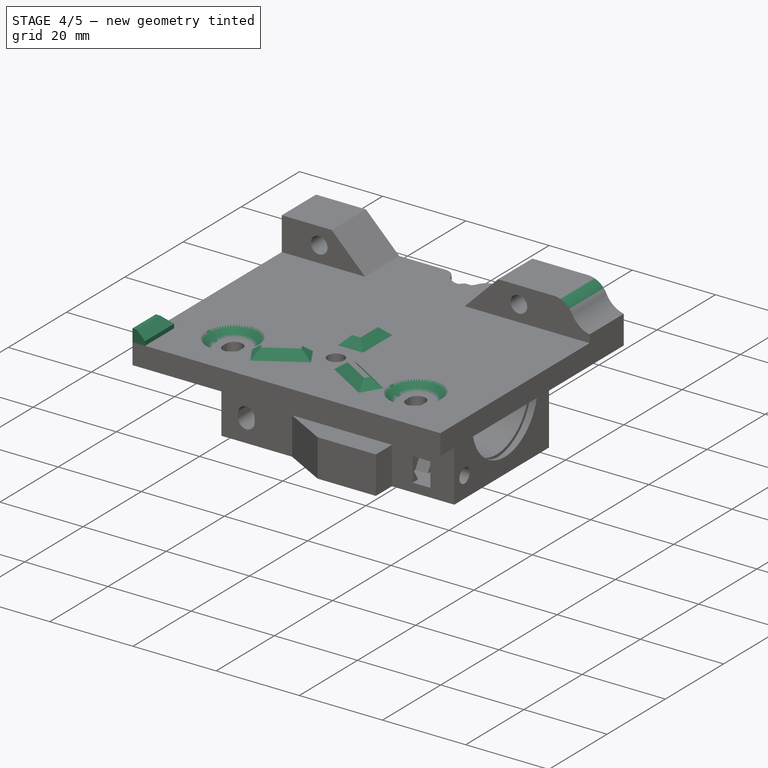
[diagram: stage 4 of 5 — iso view after this stage's code; geometry added in this stage tinted green]
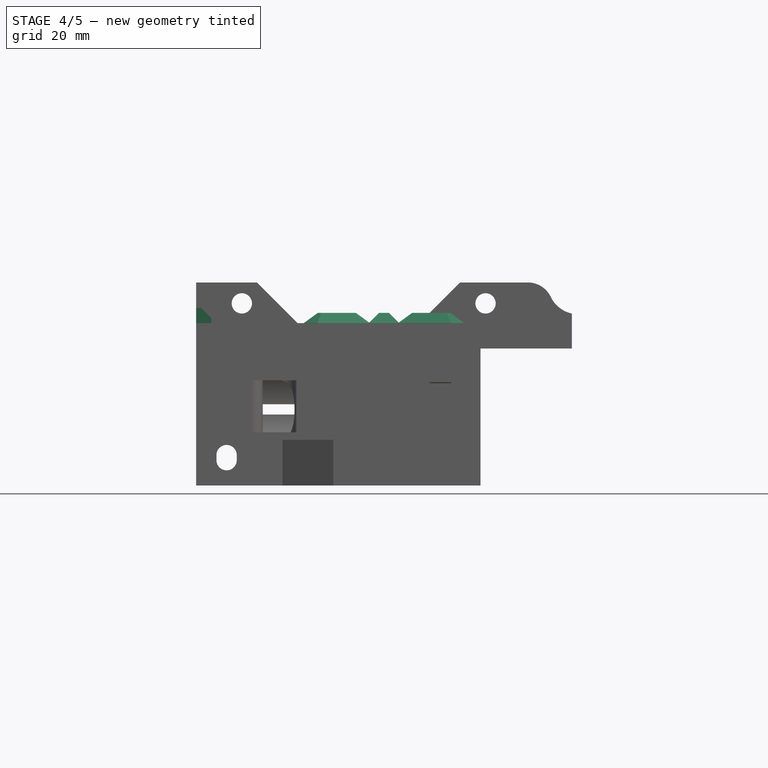
[diagram: stage 4 of 5 — front view after this stage's code; geometry added in this stage tinted green]
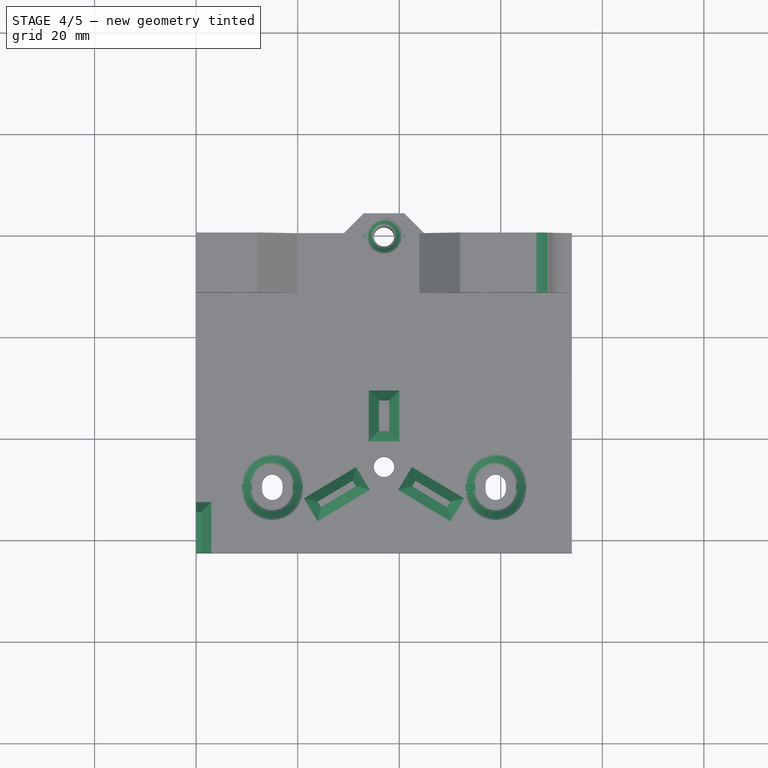
[diagram: stage 4 of 5 — top view after this stage's code; geometry added in this stage tinted green]
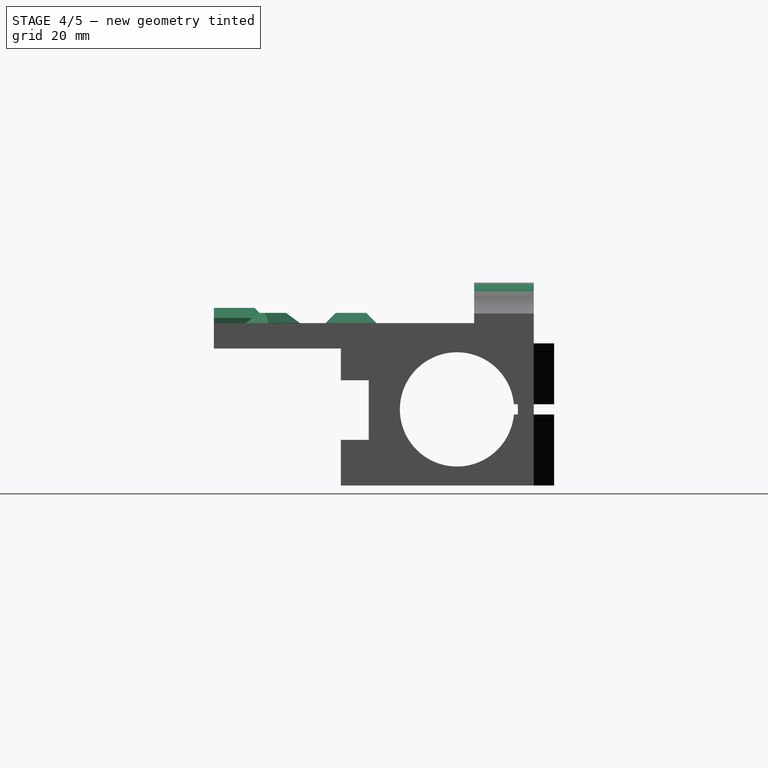
[diagram: stage 4 of 5 — right view after this stage's code; geometry added in this stage tinted green]
FEATURE [Sketcher::SketchObject] Sketch022
  MapMode = 5
  Placement = pos=(5e-12,-5e-12,-40) rot=(0.707107,0.707107,0;3.14159rad)
  Support = -> [Pocket017]
  sketch-geometry (1):
    g0: Circle CenterX=-27.25 CenterY=36.5 CenterZ=0 NormalX=0 NormalY=0 NormalZ=1 AngleXU=0 Radius=2.35
  constraints (3):
    c: DistanceX(g0) = -27.25
    c: DistanceY(g0) = 36.5
    c: Radius(g0) = 2.35
FEATURE [PartDesign::Pocket] Pocket018
  BaseFeature = -> Pocket017
  Length = 8
  Length2 = 100
  Placement = pos=(0,0,0) rot=(0.57735,0.57735,0.57735;2.0944rad)
  Profile = -> Sketch022
  Type = 0
FEATURE [Sketcher::SketchObject] Sketch023
  MapMode = 5
  Placement = pos=(0,0,0) rot=(0.57735,0.57735,-0.57735;4.18879rad)
  Support = -> [Pocket018]
  sketch-geometry (4):
    g0: LineSegment StartX=-63 StartY=8 StartZ=0 EndX=-53 EndY=8 EndZ=0
    g1: LineSegment StartX=-53 StartY=8 StartZ=0 EndX=-53 EndY=5 EndZ=0
    g2: LineSegment StartX=-53 StartY=5 StartZ=0 EndX=-63 EndY=5 EndZ=0
    g3: LineSegment StartX=-63 StartY=5 StartZ=0 EndX=-63 EndY=8 EndZ=0
  constraints (12):
    c: Coincident(g0,g1)
    c: Coincident(g1,g2)
    c: Coincident(g2,g3)
    c: Coincident(g3,g0)
    c: Horizontal(g0)
    c: Horizontal(g2)
    c: Vertical(g1)
    c: Vertical(g3)
    c: DistanceX(g0,g0) = 10
    c: DistanceY(g1,g1) = 3
    c: DistanceX(g0) = -63
    c: DistanceY(g0) = 8
FEATURE [PartDesign::Pad] Pad003
  BaseFeature = -> Pocket018
  Length = 3
  Length2 = 100
  Placement = pos=(0,0,0) rot=(0.57735,0.57735,0.57735;2.0944rad)
  Profile = -> Sketch023
  Reversed = true
  Type = 0
FEATURE [PartDesign::Chamfer] Chamfer
  Base = -> Pad003 [Face186,Face187,Face185,Edge285,Edge295]
  BaseFeature = -> Pad003
  Placement = pos=(0,0,0) rot=(0.57735,0.57735,0.57735;2.0944rad)
  Size = 1.99
FEATURE [PartDesign::Fillet] Fillet
  Base = -> Chamfer [Edge264,Edge262]
  BaseFeature = -> Chamfer
  Placement = pos=(0,0,0) rot=(0.57735,0.57735,0.57735;2.0944rad)
  Radius = 3
FEATURE [PartDesign::Chamfer] Chamfer001
  Base = -> Fillet [Edge78]
  BaseFeature = -> Fillet
  Placement = pos=(0,0,0) rot=(0.57735,0.57735,0.57735;2.0944rad)
  Size = 1.49
FEATURE [PartDesign::Chamfer] Chamfer002
  Base = -> Chamfer001 [Edge182,Edge184]
  BaseFeature = -> Chamfer001
  Placement = pos=(0,0,0) rot=(0.57735,0.57735,0.57735;2.0944rad)
  Size = 2
FEATURE [PartDesign::Fillet] Fillet001
  Base = -> Chamfer002 [Edge256]
  BaseFeature = -> Chamfer002
  Placement = pos=(0,0,0) rot=(0.57735,0.57735,0.57735;2.0944rad)
  Radius = 5
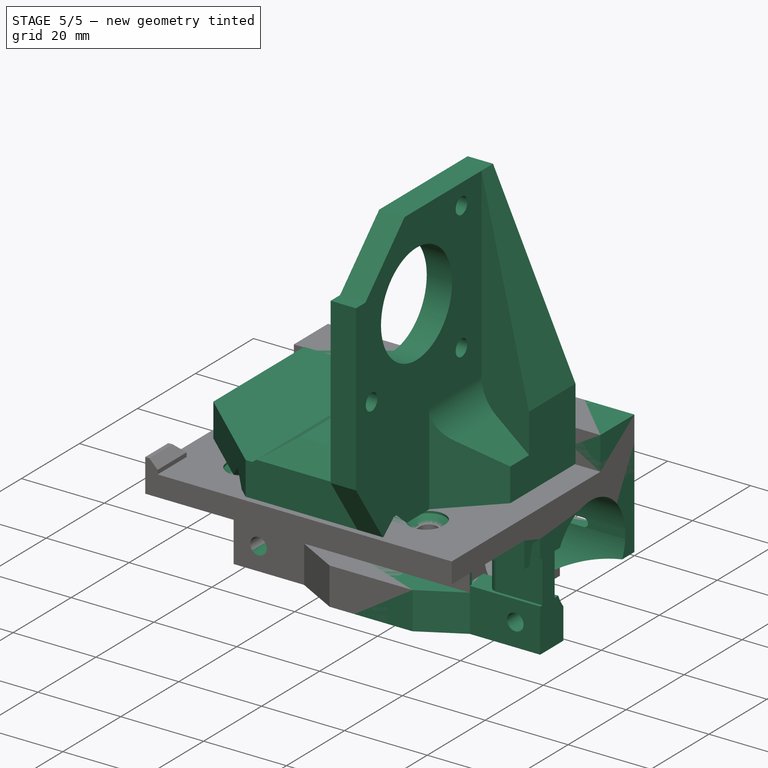
[diagram: stage 5 of 5 — iso view after this stage's code; geometry added in this stage tinted green]
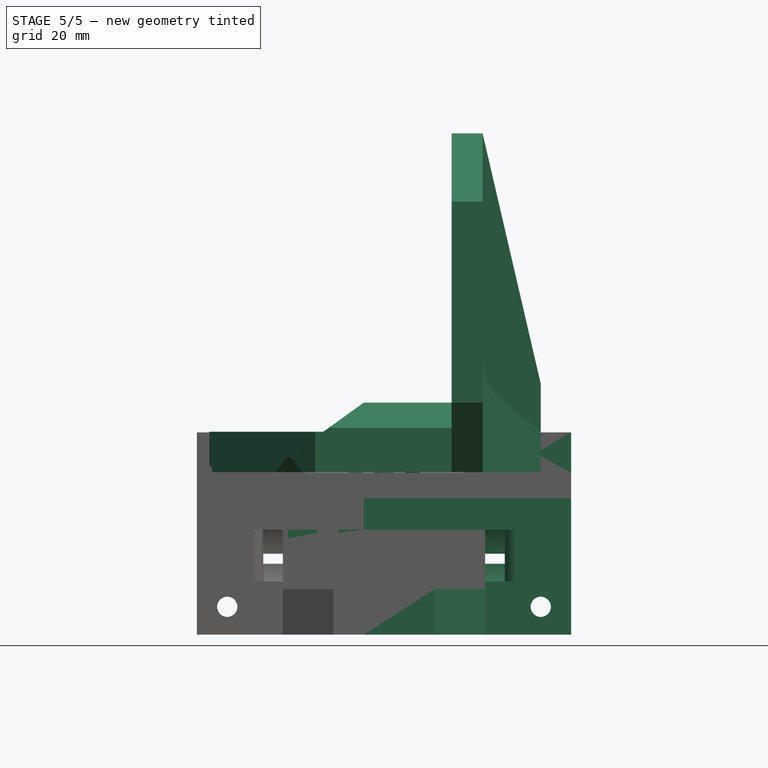
[diagram: stage 5 of 5 — front view after this stage's code; geometry added in this stage tinted green]
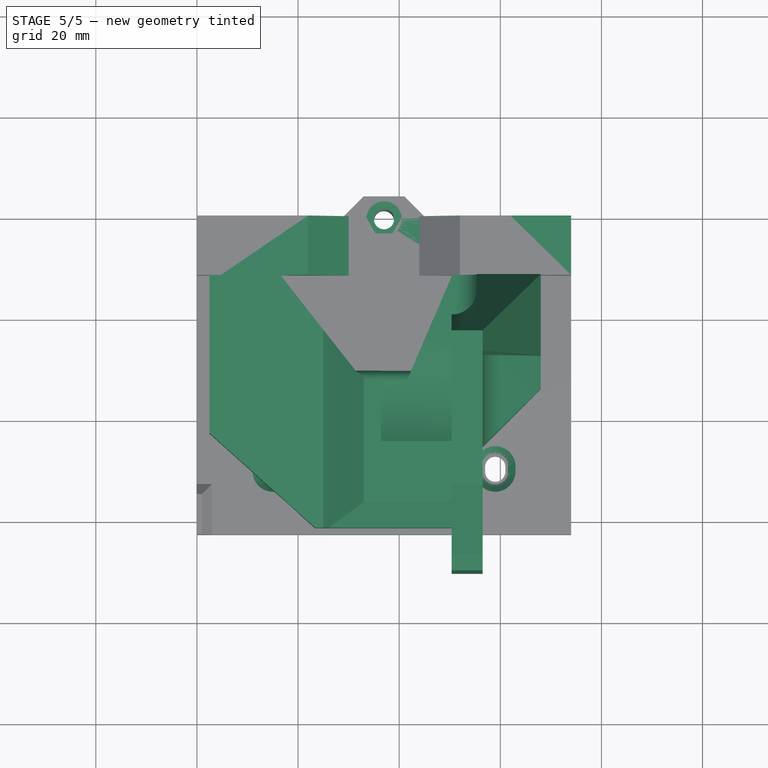
[diagram: stage 5 of 5 — top view after this stage's code; geometry added in this stage tinted green]
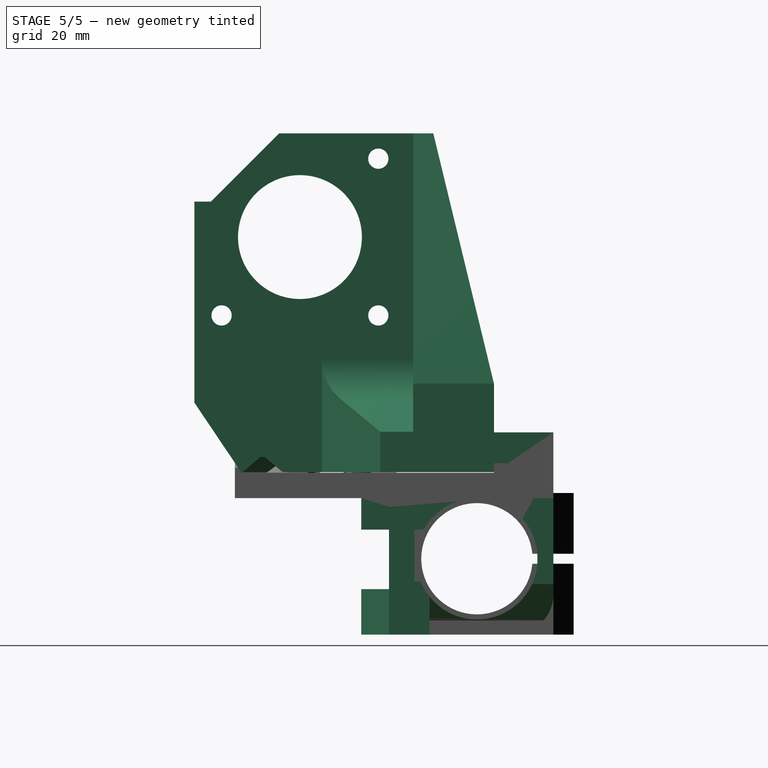
[diagram: stage 5 of 5 — right view after this stage's code; geometry added in this stage tinted green]
FEATURE [Part::FeaturePython] x_carriage_v4_1_6_mir_01  # a2plus imported part (geometry in sourceFile) (typed FeaturePython)
  fixedPosition = true
  sourceFile = <userpath>/Projects/taz-quiver/production_parts/printed_parts/x_carriage/x_carriage_v4.1.6_mir.fcstd
  timeLastImport = 1.54647e+09
  updateColors = true
FEATURE [Sketcher::SketchObject] Sketch006
  MapMode = 5
  Placement = pos=(46,-5e-12,5e-12) rot=(0.57735,0.57735,0.57735;2.0944rad)
  Support = -> [Pocket004]
  sketch-geometry (14):
    g0: LineSegment StartX=-25.65 StartY=-17 StartZ=0 EndX=-27.325 EndY=-14.0988 EndZ=0
    g1: LineSegment StartX=-27.325 StartY=-14.0988 StartZ=0 EndX=-30.675 EndY=-14.0988 EndZ=0
    g2: LineSegment StartX=-30.675 StartY=-14.0988 StartZ=0 EndX=-32.35 EndY=-17 EndZ=0
    g3: LineSegment StartX=-32.35 StartY=-17 StartZ=0 EndX=-30.675 EndY=-19.9012 EndZ=0
    g4: LineSegment StartX=-30.675 StartY=-19.9012 StartZ=0 EndX=-27.325 EndY=-19.9012 EndZ=0
    g5: LineSegment StartX=-27.325 StartY=-19.9012 StartZ=0 EndX=-25.65 EndY=-17 EndZ=0
    g6: Circle [constr] CenterX=-29 CenterY=-17 CenterZ=0 NormalX=0 NormalY=0 NormalZ=1 AngleXU=0 Radius=3.35
    g7: LineSegment StartX=-25.65 StartY=-35 StartZ=0 EndX=-27.325 EndY=-32.0988 EndZ=0
    g8: LineSegment StartX=-27.325 StartY=-32.0988 StartZ=0 EndX=-30.675 EndY=-32.0988 EndZ=0
    g9: LineSegment StartX=-30.675 StartY=-32.0988 StartZ=0 EndX=-32.35 EndY=-35 EndZ=0
    g10: LineSegment StartX=-32.35 StartY=-35 StartZ=0 EndX=-30.675 EndY=-37.9012 EndZ=0
    g11: LineSegment StartX=-30.675 StartY=-37.9012 StartZ=0 EndX=-27.325 EndY=-37.9012 EndZ=0
    g12: LineSegment StartX=-27.325 StartY=-37.9012 StartZ=0 EndX=-25.65 EndY=-35 EndZ=0
    g13: Circle [constr] CenterX=-29 CenterY=-35 CenterZ=0 NormalX=0 NormalY=0 NormalZ=1 AngleXU=0 Radius=3.35
  constraints (34):
    c: Coincident(g0,g1)
    c: Coincident(g1,g2)
    c: Coincident(g2,g3)
    c: Coincident(g3,g4)
    c: Coincident(g4,g5)
    c: Coincident(g5,g0)
    c: Equal(g0, g1-g5) x5
    c: PointOnObject(g0,g6)
    c: PointOnObject(g1,g6)
    c: PointOnObject(g2,g6)
    c: PointOnObject(g3,g6)
    c: PointOnObject(g4,g6)
    c: PointOnObject(g5,g6)
    c: Coincident(g7,g8)
    c: Coincident(g8,g9)
    c: Coincident(g9,g10)
    c: Coincident(g10,g11)
    c: Coincident(g11,g12)
    c: Coincident(g12,g7)
    c: Equal(g7, g8-g12) x5
    c: PointOnObject(g7,g13)
    c: PointOnObject(g8,g13)
    c: PointOnObject(g9,g13)
    c: PointOnObject(g10,g13)
    c: PointOnObject(g11,g13)
    c: PointOnObject(g12,g13)
    c: DistanceX(g6) = -29
    c: DistanceY(g6) = -17
    c: Horizontal(g1)
    c: Radius(g6) = 3.35
    c: DistanceX(g13,g6) = 0
    c: DistanceY(g13,g6) = 18
    c: Equal(g13,g6)
    c: Horizontal(g8)
FEATURE [Sketcher::SketchObject] Sketch009
  MapMode = 5
  Placement = pos=(0,0,0) rot=(0.57735,0.57735,-0.57735;4.18879rad)
  sketch-geometry (11):
    g0: LineSegment StartX=-36.25 StartY=19.25 StartZ=0 EndX=-35.25 EndY=14.75 EndZ=0
    g1: LineSegment StartX=-35.25 StartY=14.75 StartZ=0 EndX=-32.5 EndY=14.75 EndZ=0
    g2: LineSegment StartX=-32.5 StartY=14.75 StartZ=0 EndX=-32.5 EndY=19.25 EndZ=0
    g3: LineSegment StartX=-32.5 StartY=19.25 StartZ=0 EndX=-31.75 EndY=19.25 EndZ=0
    g4: LineSegment StartX=-31.75 StartY=19.25 StartZ=0 EndX=-31.75 EndY=29.5 EndZ=0
    g5: LineSegment StartX=-31.75 StartY=29.5 StartZ=0 EndX=-32.5 EndY=29.5 EndZ=0
    g6: LineSegment StartX=-32.5 StartY=29.5 StartZ=0 EndX=-36.25 EndY=19.25 EndZ=0
    g7: LineSegment StartX=-27.5 StartY=29.5 StartZ=0 EndX=-23.5 EndY=29.5 EndZ=0
    g8: LineSegment StartX=-23.5 StartY=29.5 StartZ=0 EndX=-23.5 EndY=19.25 EndZ=0
    g9: LineSegment StartX=-23.5 StartY=19.25 StartZ=0 EndX=-27.5 EndY=19.25 EndZ=0
    g10: LineSegment StartX=-27.5 StartY=19.25 StartZ=0 EndX=-27.5 EndY=29.5 EndZ=0
  constraints (34):
    c: Coincident(g0,g1)
    c: Coincident(g1,g2)
    c: Coincident(g2,g3)
    c: Coincident(g3,g4)
    c: Coincident(g4,g5)
    c: Coincident(g5,g6)
    c: Coincident(g0,g6)
    c: Horizontal(g3)
    c: Horizontal(g1)
    c: Vertical(g2)
    c: Vertical(g4)
    c: DistanceX(g3) = -31.75
    c: DistanceY(g3) = 19.25
    c: DistanceX(g3,g3) = 0.75
    c: DistanceY(g2,g2) = 4.5
    c: DistanceX(g1,g1) = 2.75
    c: DistanceX(g0,g2) = 3.75
    c: Equal(g5,g3)
    c: DistanceY(g4,g4) = 10.25
    c: DistanceY(g0,g0) = 4.5
    c: Horizontal(g5)
    c: Coincident(g7,g8)
    c: Coincident(g8,g9)
    c: Coincident(g9,g10)
    c: Coincident(g10,g7)
    c: Horizontal(g7)
    c: Horizontal(g9)
    c: Vertical(g8)
    c: Vertical(g10)
    c: PointOnObject(g7,g5)
    c: PointOnObject(g9,g3)
    c: DistanceX(g3,g9) = 4.25
    c: Equal(g10,g4)
    c: DistanceX(g7,g7) = 4
FEATURE [Sketcher::SketchObject] Sketch012
  MapMode = 5
  Placement = pos=(0,0,0) rot=(0.57735,0.57735,-0.57735;4.18879rad)
  sketch-geometry (1):
    g0: Circle CenterX=-15.125 CenterY=25 CenterZ=0 NormalX=0 NormalY=0 NormalZ=1 AngleXU=0 Radius=12
  constraints (3):
    c: DistanceX(g0) = -15.125
    c: DistanceY(g0) = 25
    c: Radius(g0) = 12
FEATURE [Sketcher::SketchObject] Sketch016
  MapMode = 5
  Placement = pos=(-4e-12,-32.5,4e-12) rot=(0.57735,0.57735,-0.57735;2.0944rad)
  sketch-geometry (4):
    g0: ArcOfCircle CenterX=34 CenterY=6 CenterZ=0 NormalX=0 NormalY=0 NormalZ=1 AngleXU=0 Radius=2 StartAngle=1.5708 EndAngle=4.71239
    g1: ArcOfCircle CenterX=35 CenterY=6 CenterZ=0 NormalX=0 NormalY=0 NormalZ=1 AngleXU=0 Radius=2 StartAngle=4.71239 EndAngle=7.85398
    g2: LineSegment StartX=34 StartY=4 StartZ=0 EndX=35 EndY=4 EndZ=0
    g3: LineSegment StartX=34 StartY=8 StartZ=0 EndX=35 EndY=8 EndZ=0
  constraints (10):
    c: Tangent(g0,g3) = 1.5708
    c: Tangent(g0,g2) = -1.5708
    c: Tangent(g2,g1) = -1.5708
    c: Tangent(g3,g1) = 1.5708
    c: Horizontal(g2)
    c: Equal(g0,g1)
    c: DistanceX(g0) = 34
    c: DistanceY(g0) = 6
    c: DistanceX(g0,g1) = 1
    c: Radius(g1) = 2
FEATURE [Sketcher::SketchObject] Sketch017
  MapMode = 5
  Placement = pos=(56,-6e-12,6e-12) rot=(0.57735,0.57735,0.57735;2.0944rad)
  sketch-geometry (1):
    g0: Circle CenterX=-15.125 CenterY=-25 CenterZ=0 NormalX=0 NormalY=0 NormalZ=1 AngleXU=0 Radius=12
  constraints (3):
    c: DistanceX(g0) = -15.125
    c: DistanceY(g0) = -25
    c: Radius(g0) = 12
FEATURE [Sketcher::SketchObject] Sketch018
  MapMode = 5
  Placement = pos=(56,-6e-12,6e-12) rot=(0.57735,0.57735,0.57735;2.0944rad)
  sketch-geometry (5):
    g0: ArcOfCircle CenterX=-15.125 CenterY=-25 CenterZ=0 NormalX=0 NormalY=0 NormalZ=1 AngleXU=0 Radius=11.25 StartAngle=0.0890064 EndAngle=6.19418
    g1: ArcOfCircle CenterX=-15.125 CenterY=-25 CenterZ=0 NormalX=0 NormalY=0 NormalZ=1 AngleXU=0 Radius=12 StartAngle=0.0834301 EndAngle=6.19976
    g2: LineSegment StartX=-3.91953 StartY=-24 StartZ=0 EndX=-3.16674 EndY=-24 EndZ=0
    g3: LineSegment StartX=-3.16674 StartY=-26 StartZ=0 EndX=-3.91953 EndY=-26 EndZ=0
    g4: LineSegment [constr] StartX=-3.91953 StartY=-26 StartZ=0 EndX=-3.91953 EndY=-24 EndZ=0
  constraints (17):
    c: Coincident(g0,g1)
    c: DistanceX(g0) = -15.125
    c: DistanceY(g0) = -25
    c: Radius(g0) = 11.25
    c: Radius(g1) = 12
    c: Coincident(g3,g4)
    c: Coincident(g4,g2)
    c: Horizontal(g2)
    c: Horizontal(g3)
    c: Vertical(g4)
    c: PointOnObject(g3,g0)
    c: PointOnObject(g2,g0)
    c: PointOnObject(g0,g4)
    c: PointOnObject(g0,g4)
    c: Coincident(g1,g2)
    c: Coincident(g1,g3)
    c: DistanceY(g4,g4) = 2
FEATURE [Sketcher::SketchObject] Sketch019
  MapMode = 5
  Placement = pos=(1e-12,-1e-12,-8) rot=(0,0,-1;1.5708rad)
  sketch-geometry (18):
    g0: LineSegment StartX=31 StartY=40 StartZ=0 EndX=41 EndY=40 EndZ=0
    g1: LineSegment StartX=41 StartY=34 StartZ=0 EndX=31 EndY=34 EndZ=0
    g2: LineSegment StartX=31 StartY=34 StartZ=0 EndX=31 EndY=40 EndZ=0
    g3: LineSegment StartX=41 StartY=40 StartZ=0 EndX=41 EndY=34 EndZ=0
    g4: LineSegment StartX=46.0625 StartY=42.5 StartZ=0 EndX=52.243 EndY=52.786 EndZ=0
    g5: LineSegment StartX=52.243 StartY=52.786 StartZ=0 EndX=56.7431 EndY=50.0821 EndZ=0
    g6: LineSegment StartX=56.7431 StartY=50.0821 StartZ=0 EndX=50.5626 EndY=39.7961 EndZ=0
    g7: LineSegment StartX=50.5626 StartY=39.7961 StartZ=0 EndX=46.0625 EndY=42.5 EndZ=0
    g8: LineSegment [constr] StartX=31 StartY=37 StartZ=0 EndX=41 EndY=37 EndZ=0
    g9: LineSegment [constr] StartX=46.0625 StartY=42.5 StartZ=0 EndX=50.5626 EndY=39.7961 EndZ=0
    g10: LineSegment [constr] StartX=50.5626 StartY=39.7961 StartZ=0 EndX=50.5626 EndY=34.2039 EndZ=0
    g11: LineSegment [constr] StartX=50.5626 StartY=34.2039 StartZ=0 EndX=46.0625 EndY=31.5 EndZ=0
    g12: LineSegment [constr] StartX=46.0625 StartY=31.5 StartZ=0 EndX=46.0625 EndY=42.5 EndZ=0
    g13: LineSegment StartX=50.5626 StartY=34.2039 StartZ=0 EndX=56.7431 EndY=23.9179 EndZ=0
    g14: LineSegment StartX=56.7431 StartY=23.9179 StartZ=0 EndX=52.243 EndY=21.214 EndZ=0
    g15: LineSegment StartX=52.243 StartY=21.214 StartZ=0 EndX=46.0625 EndY=31.5 EndZ=0
    g16: LineSegment StartX=46.0625 StartY=31.5 StartZ=0 EndX=50.5626 EndY=34.2039 EndZ=0
    g17: LineSegment [constr] StartX=56.7431 StartY=50.0821 StartZ=0 EndX=56.7431 EndY=23.9179 EndZ=0
  constraints (50):
    c: Coincident(g1,g2)
    c: Coincident(g0,g2)
    c: Vertical(g2)
    c: Horizontal(g0)
    c: Horizontal(g1)
    c: DistanceY(g2,g2) = 6
    c: Coincident(g1,g3)
    c: Coincident(g0,g3)
    c: Vertical(g3)
    c: DistanceX(g0) = 31
    c: DistanceX(g0,g0) = 10
    c: DistanceY(g1) = 34
    c: Coincident(g4,g5)
    c: Coincident(g5,g6)
    c: Coincident(g6,g7)
    c: Angle(g4) = 1.02974
    c: Parallel(g6,g4)
    c: Perpendicular(g6,g5)
    c: Coincident(g4,g7)
    c: Perpendicular(g4,g7)
    c: DistanceY(g4) = 42.5
    c: DistanceX(g4) = 46.0625
    c: Distance(g7) = 5.25
    c: Distance(g4) = 12
    c: PointOnObject(g8,g3)
    c: PointOnObject(g8,g2)
    c: Horizontal(g8)
    c: DistanceY(g8) = 37
    c: Coincident(g9,g10)
    c: Coincident(g10,g11)
    c: Coincident(g11,g12)
    c: Coincident(g12,g9)
    c: Vertical(g10)
    c: Vertical(g12)
    c: Coincident(g4,g9)
    c: Coincident(g6,g9)
    c: Coincident(g13,g14)
    c: Coincident(g14,g15)
    c: Coincident(g15,g16)
    c: Coincident(g10,g13)
    c: Coincident(g10,g16)
    c: Coincident(g11,g15)
    c: Parallel(g13,g15)
    c: Angle(g13) = -1.02974
    c: DistanceY(g11,g8) = 5.5
    c: Perpendicular(g15,g16)
    c: Coincident(g13,g17)
    c: Coincident(g5,g17)
    c: Vertical(g17)
    c: Perpendicular(g13,g14)
FEATURE [Sketcher::SketchObject] Sketch020
  MapMode = 5
  Placement = pos=(0,0,-8) rot=(0,0,-1;1.5708rad)
  sketch-geometry (8):
    g0: ArcOfCircle CenterX=49.5 CenterY=15 CenterZ=0 NormalX=0 NormalY=0 NormalZ=1 AngleXU=0 Radius=4 StartAngle=1.5708 EndAngle=4.71239
    g1: ArcOfCircle CenterX=50.5 CenterY=15 CenterZ=0 NormalX=0 NormalY=0 NormalZ=1 AngleXU=0 Radius=4 StartAngle=4.71239 EndAngle=7.85398
    g2: LineSegment StartX=49.5 StartY=11 StartZ=0 EndX=50.5 EndY=11 EndZ=0
    g3: LineSegment StartX=49.5 StartY=19 StartZ=0 EndX=50.5 EndY=19 EndZ=0
    g4: ArcOfCircle CenterX=49.5 CenterY=59 CenterZ=0 NormalX=0 NormalY=0 NormalZ=1 AngleXU=0 Radius=4 StartAngle=1.5708 EndAngle=4.71239
    g5: ArcOfCircle CenterX=50.5 CenterY=59 CenterZ=0 NormalX=0 NormalY=0 NormalZ=1 AngleXU=0 Radius=4 StartAngle=4.71239 EndAngle=7.85398
    g6: LineSegment StartX=49.5 StartY=55 StartZ=0 EndX=50.5 EndY=55 EndZ=0
    g7: LineSegment StartX=49.5 StartY=63 StartZ=0 EndX=50.5 EndY=63 EndZ=0
  constraints (20):
    c: Tangent(g0,g3) = 1.5708
    c: Tangent(g0,g2) = -1.5708
    c: Tangent(g2,g1) = -1.5708
    c: Tangent(g3,g1) = 1.5708
    c: Horizontal(g2)
    c: Equal(g0,g1)
    c: Tangent(g4,g7) = 1.5708
    c: Tangent(g4,g6) = -1.5708
    c: Tangent(g6,g5) = -1.5708
    c: Tangent(g7,g5) = 1.5708
    c: Horizontal(g6)
    c: Equal(g4,g5)
    c: Equal(g5,g1)
    c: Radius(g1) = 4
    c: DistanceX(g4) = 49.5
    c: DistanceY(g4) = 59
    c: DistanceX(g4,g5) = 1
    c: DistanceX(g0,g1) = 1
    c: DistanceX(g1,g5) = 0
    c: DistanceY(g1,g5) = 44
FEATURE [Sketcher::SketchObject] Sketch021
  MapMode = 5
  Placement = pos=(0,0,-8) rot=(0,0,-1;1.5708rad)
  sketch-geometry (1):
    g0: Circle CenterX=0.5 CenterY=37 CenterZ=0 NormalX=0 NormalY=0 NormalZ=1 AngleXU=0 Radius=3.5
  constraints (3):
    c: DistanceX(g0) = 0.5
    c: DistanceY(g0) = 37
    c: Radius(g0) = 3.5
FEATURE [Part::FeaturePython] x_carriage_v4_1_6_01  # a2plus imported part (geometry in sourceFile) (typed FeaturePython)
  Placement = pos=(74,0,0) rot=(0,1,0;3.14159rad)
  fixedPosition = false
  sourceFile = <userpath>/Projects/taz-quiver/production_parts/printed_parts/x_carriage/x_carriage_v4.1.6.fcstd
  timeLastImport = 1.54647e+09
  updateColors = true
FEATURE [App::FeaturePython] circularEdgeConstraint01  label="circularEdgeConstraint01__x_carriage_v4_1_6_mir_01"  # a2plus constraint (typed FeaturePython)
  Object1 = x_carriage_v4_1_6_01
  Object2 = x_carriage_v4_1_6_mir_01
  SubElement1 = Edge200
  SubElement2 = Edge28
  Type = circularEdge
  directionConstraint = 1
  lockRotation = false
  offset = 0
FEATURE [App::FeaturePython] circularEdgeConstraint01_mirror  label="circularEdgeConstraint01__x_carriage_v4_1_6_01"  # a2plus constraint (typed FeaturePython)
  Object1 = x_carriage_v4_1_6_01
  Object2 = x_carriage_v4_1_6_mir_01
  SubElement1 = Edge200
  SubElement2 = Edge28
  Type = circularEdge
  directionConstraint = 1
  lockRotation = false
  offset = 0
FEATURE [App::FeaturePython] circularEdgeConstraint02_mirror  label="circularEdgeConstraint02__Minii_x_carriage_V2_1_01"  # a2plus constraint (typed FeaturePython)
  Object1 = Minii_x_carriage_V2_1_01
  Object2 = Pad002
  SubElement1 = Edge247
  SubElement2 = Edge357
  Type = circularEdge
  directionConstraint = 1
  lockRotation = false
  offset = 0
FEATURE [Part::FeaturePython] Beefy_extruder_mount_v2_2_01  # a2plus imported part (geometry in sourceFile) (typed FeaturePython)
  Placement = pos=(74,14,-7.875) rot=(0,1,0;3.14159rad)
  fixedPosition = false
  sourceFile = <userpath>/Projects/mini-hibiscus/production_parts/printed_parts/extruder_mount/Beefy_extruder_mount_v2.2.fcstd
  timeLastImport = 1.53434e+09
  updateColors = true
FEATURE [PartDesign::Chamfer] Chamfer003
  Base = -> Fillet001 [Edge413,Edge410,Edge466]
  BaseFeature = -> Fillet001
  Placement = pos=(0,0,0) rot=(0.57735,0.57735,0.57735;2.0944rad)
  Size = 0.74
FEATURE [PartDesign::Chamfer] Chamfer004
  Base = -> Chamfer003 [Edge185,Edge69,Edge399,Edge401,Edge190,Edge188,Edge186,Edge187,Edge189,Edge191]
  BaseFeature = -> Chamfer003
  Placement = pos=(0,0,0) rot=(0.57735,0.57735,0.57735;2.0944rad)
  Size = 1
FEATURE [PartDesign::Fillet] Fillet002
  Base = -> Chamfer004 [Edge26,Edge2]
  BaseFeature = -> Chamfer004
  Placement = pos=(0,0,0) rot=(0.57735,0.57735,0.57735;2.0944rad)
  Radius = 7
FEATURE [PartDesign::Fillet] Fillet003
  Base = -> Fillet002 [Edge207]
  BaseFeature = -> Fillet002
  Placement = pos=(0,0,0) rot=(0.57735,0.57735,0.57735;2.0944rad)
  Radius = 4
FEATURE [PartDesign::Body] Body
  Group = -> [Sketch,Pad,Sketch001,Pocket,Sketch002,Pocket001,Sketch003,Pocket002,Sketch004,Pocket003,Sketch005,Pocket004,Sketch006,Sketch007,Sketch008,Sketch009,Sketch010,Sketch011,Sketch012,Sketch013,Sketch014,Sketch016,Sketch017,Sketch018,Sketch019,Sketch020,Sketch021,Pocket005,Pocket006,Pocket007,Pocket008,Pocket009,Pocket010,Pocket011,Pocket012,Pocket013,Pocket014,Pocket015,Pad001,Pad002,Pocket016,+14 more]
  Origin = -> Origin
  Tip = -> Fillet003
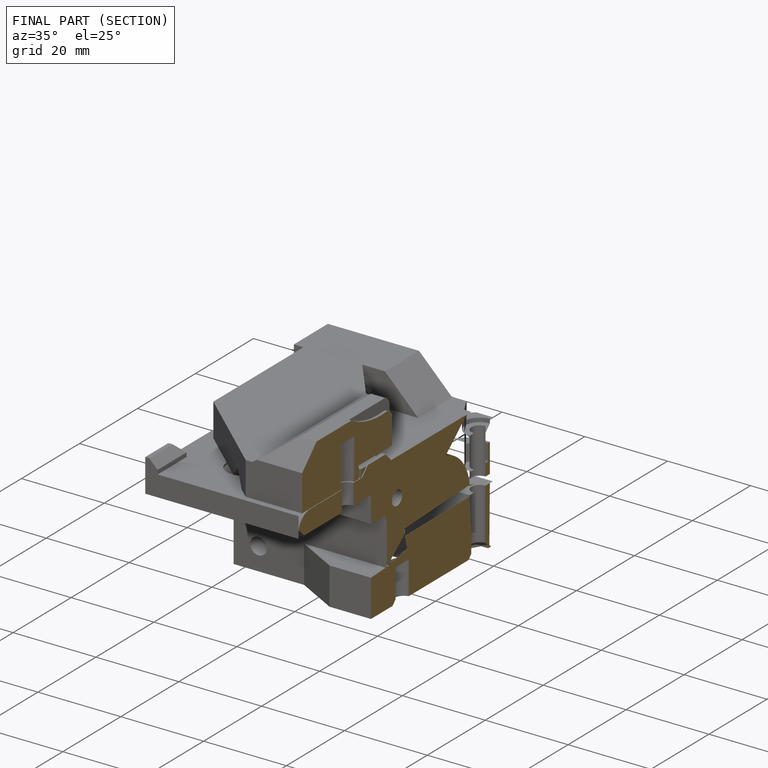
[diagram: finished part — half-section view (interior)]
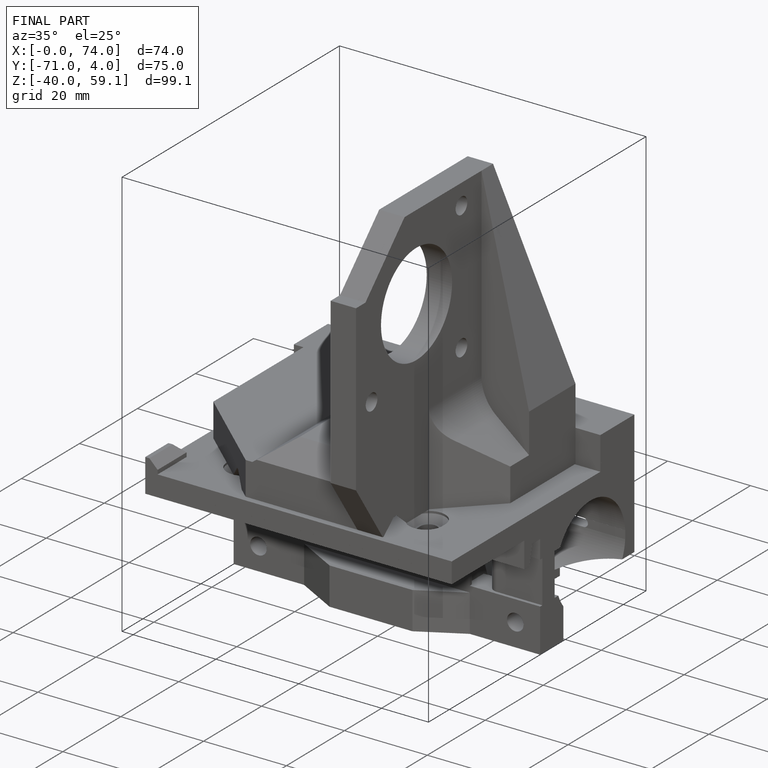
[diagram: finished part — iso view with bounding-box wireframe]
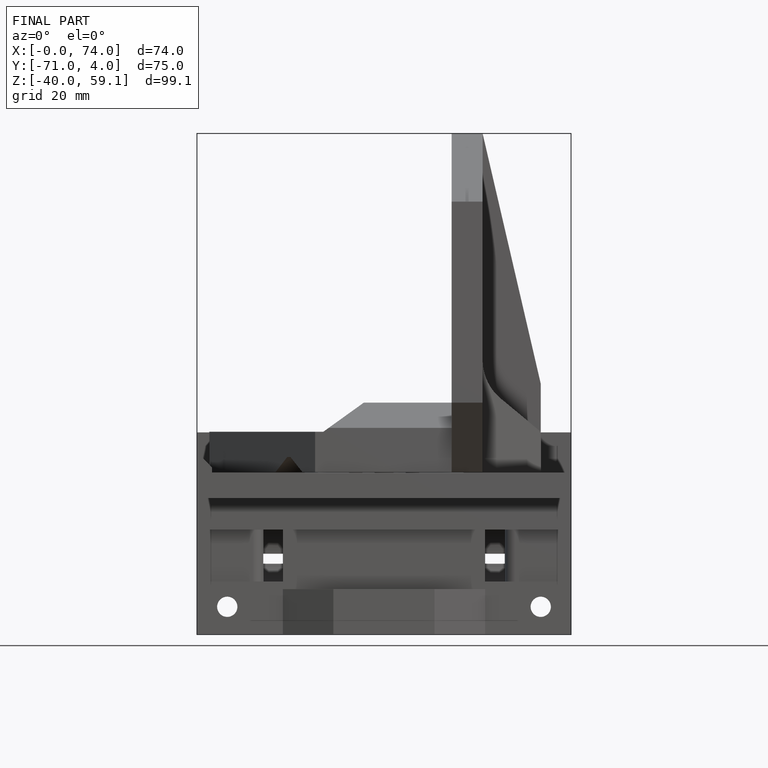
[diagram: finished part — front view with bounding-box wireframe]
